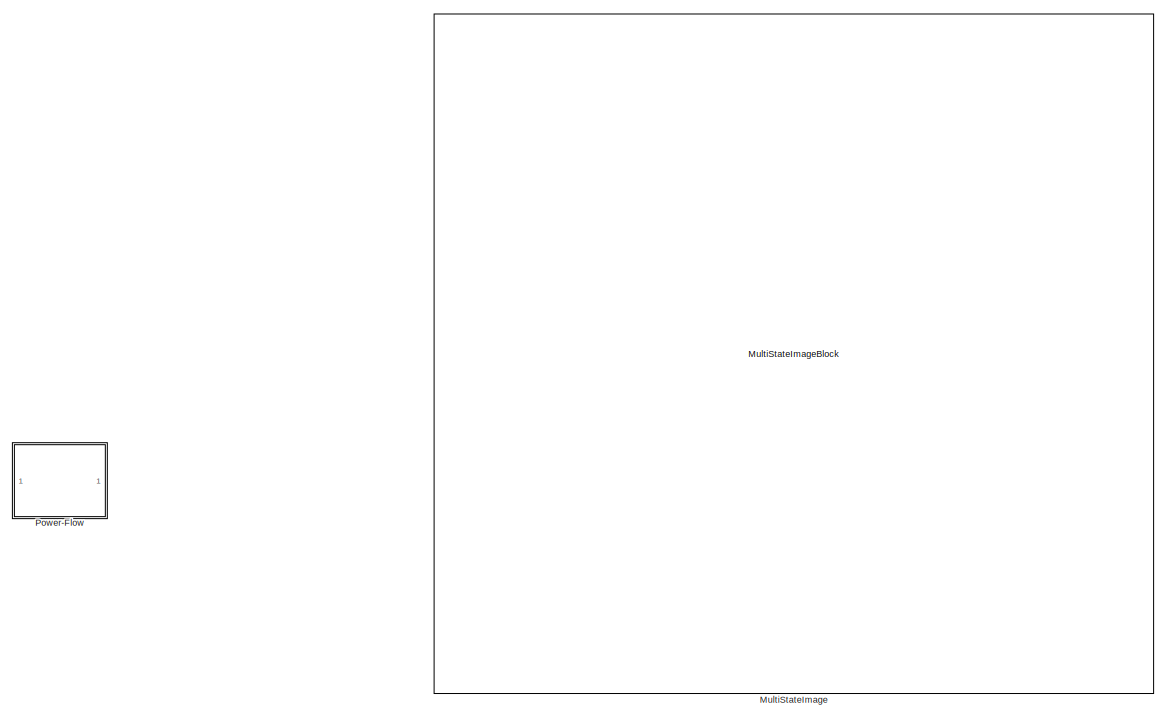
[diagram: root canvas - part 1/21, top center region]
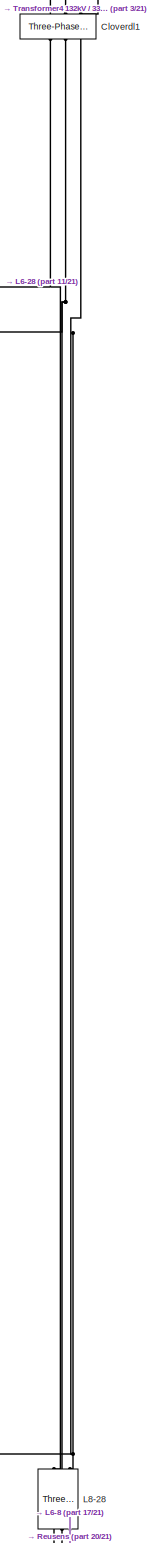
[diagram: root canvas - part 2/21, top right region]
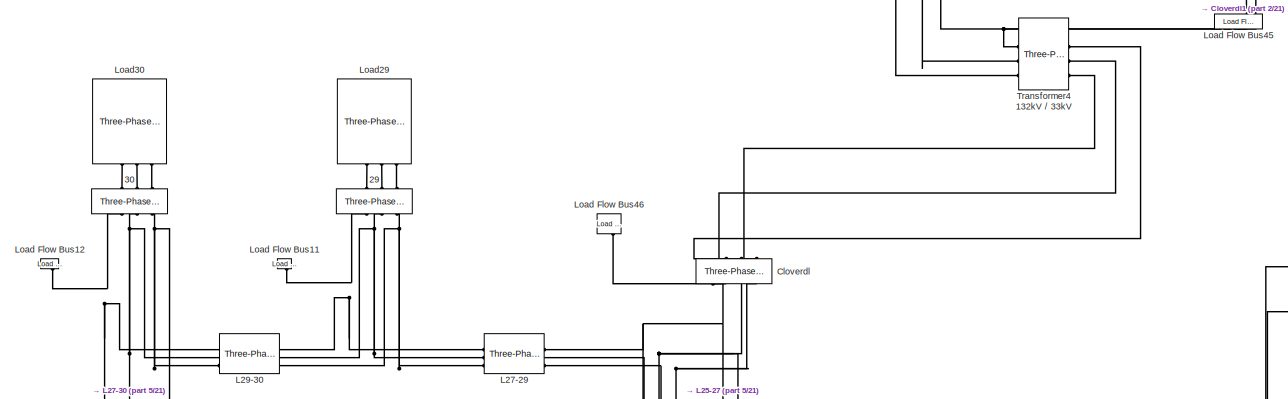
[diagram: root canvas - part 3/21, top right region]
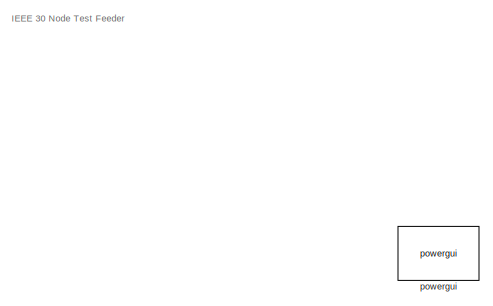
[diagram: root canvas - part 4/21, top center region]
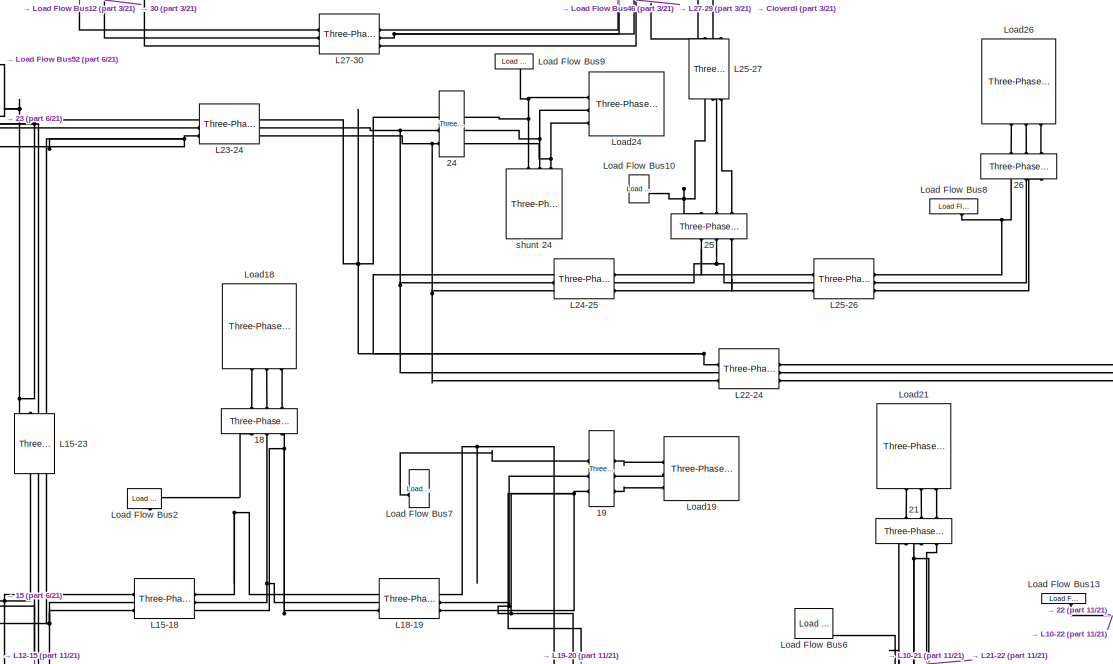
[diagram: root canvas - part 5/21, top right region]
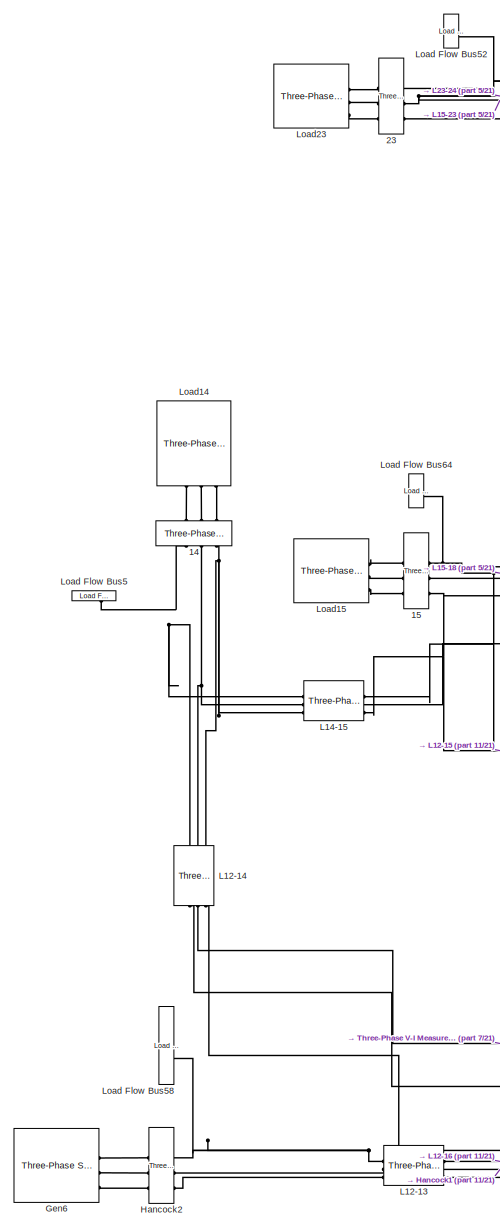
[diagram: root canvas - part 6/21, top right region]
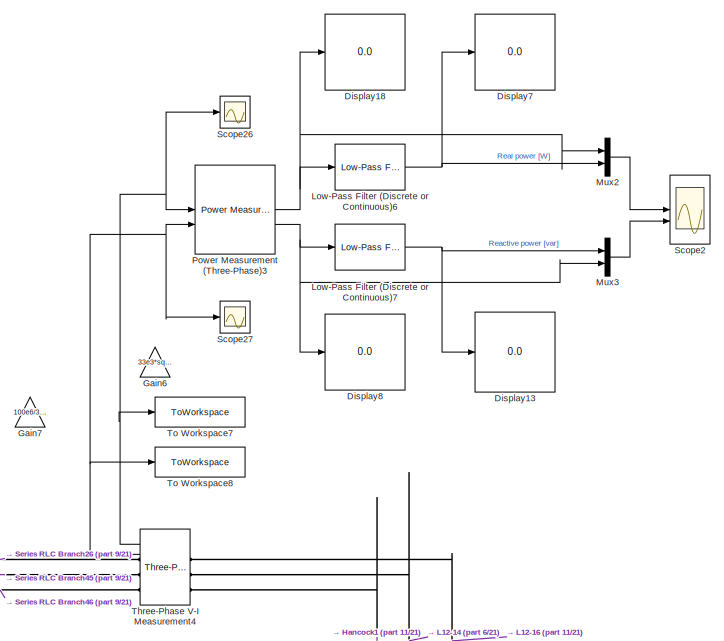
[diagram: root canvas - part 7/21, top center region]
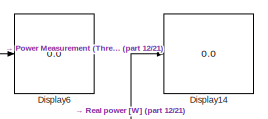
[diagram: root canvas - part 8/21, top left region]
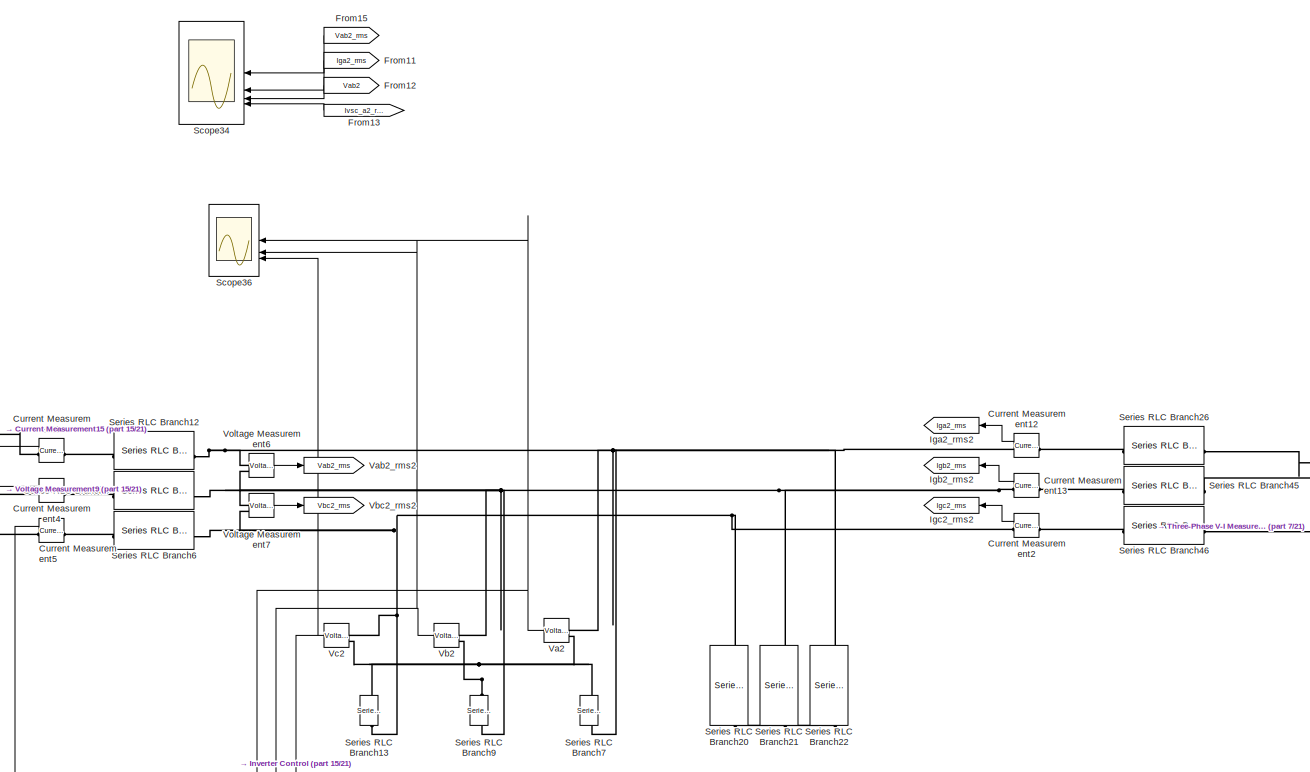
[diagram: root canvas - part 9/21, central region]
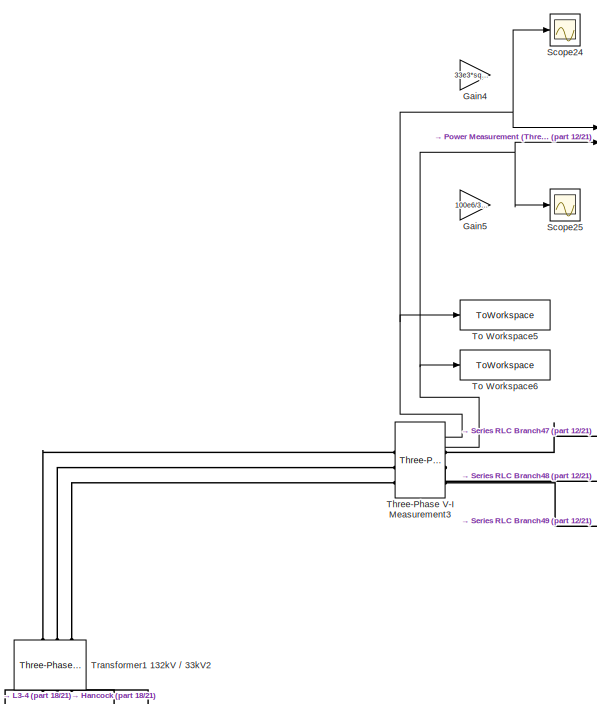
[diagram: root canvas - part 10/21, middle left region]
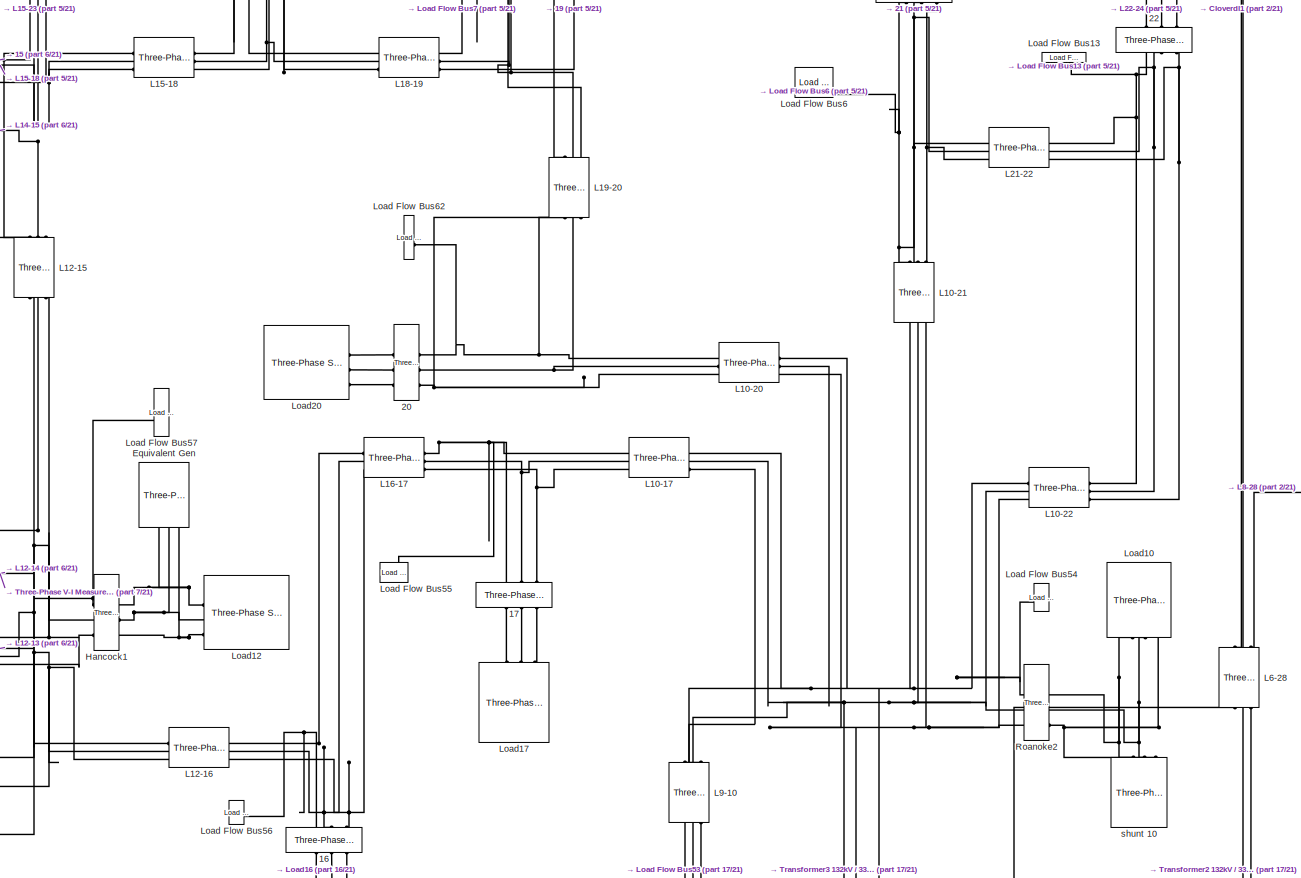
[diagram: root canvas - part 11/21, middle right region]
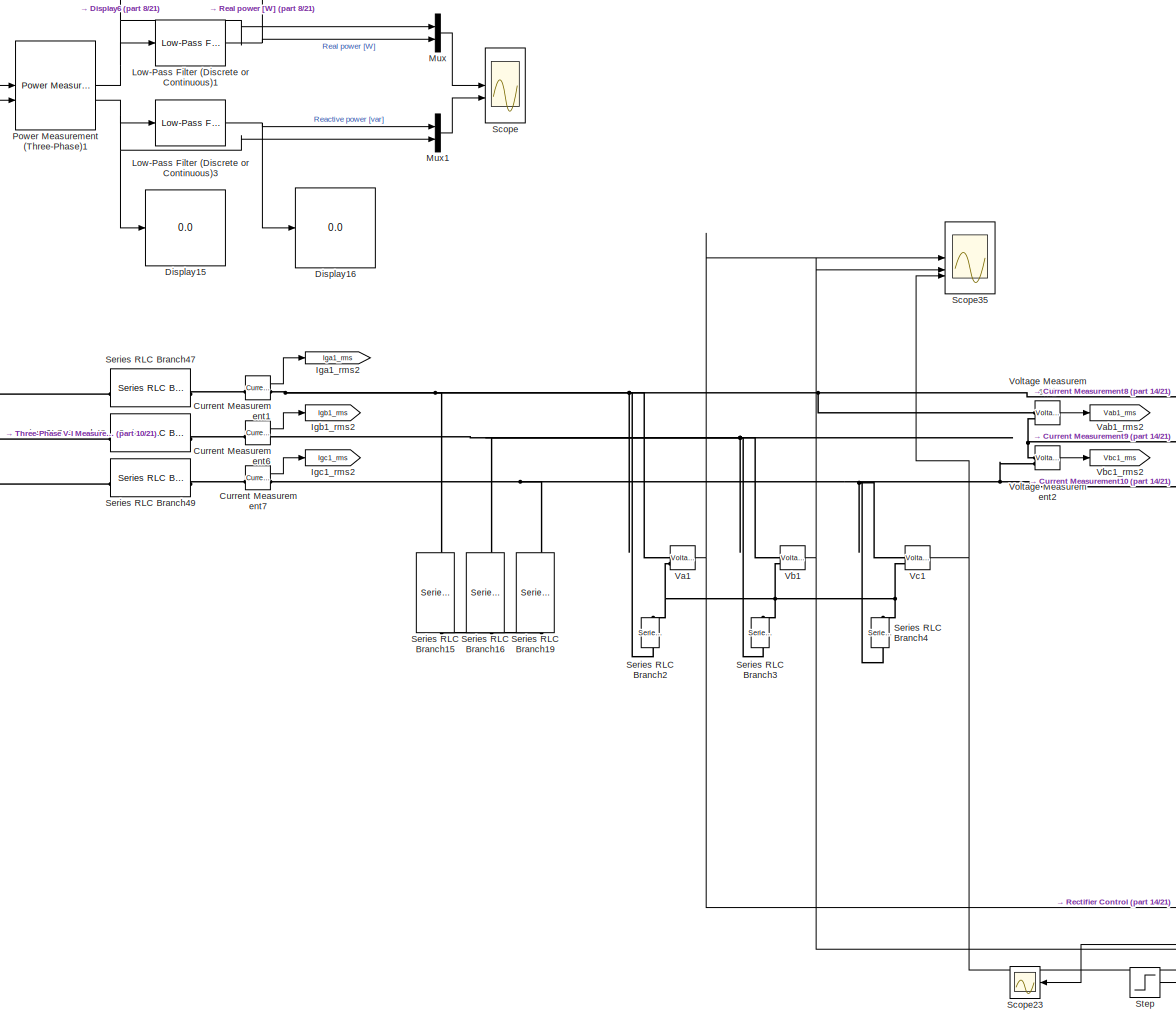
[diagram: root canvas - part 12/21, middle left region]
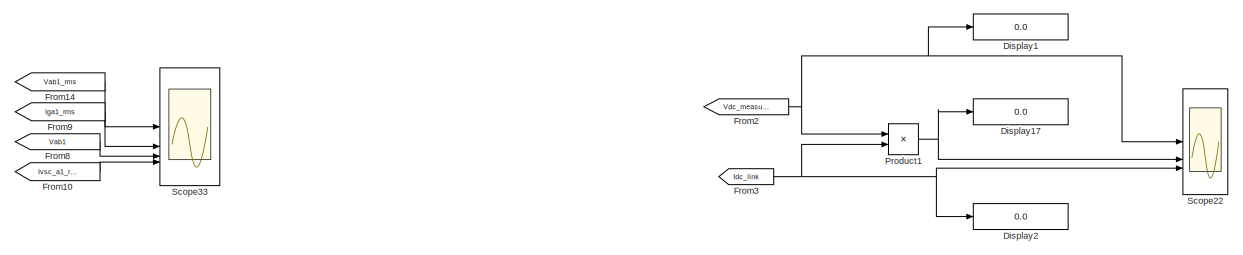
[diagram: root canvas - part 13/21, top left region]
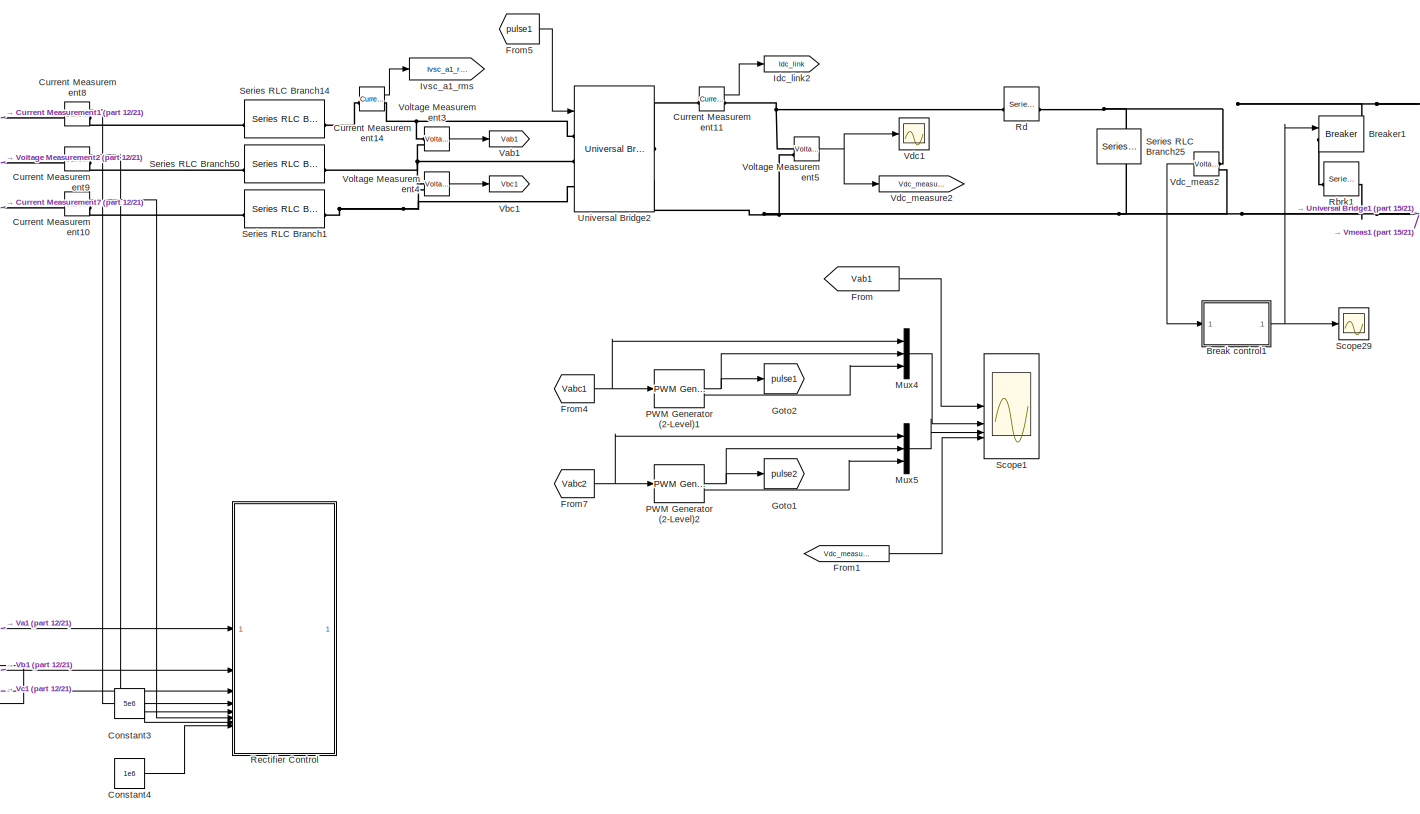
[diagram: root canvas - part 14/21, middle left region]
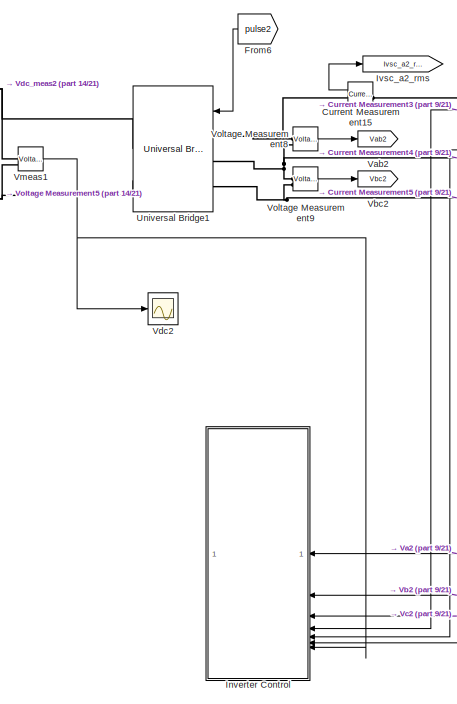
[diagram: root canvas - part 15/21, central region]
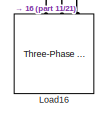
[diagram: root canvas - part 16/21, middle right region]
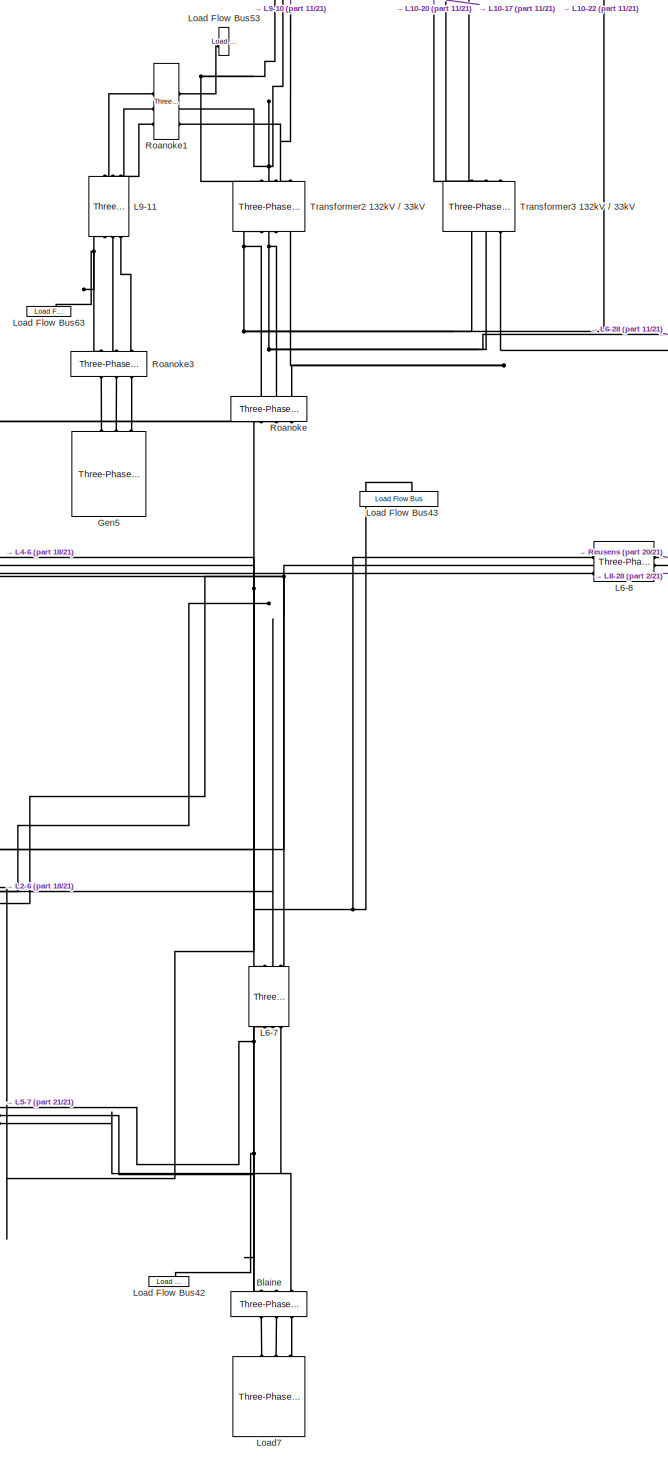
[diagram: root canvas - part 17/21, bottom right region]
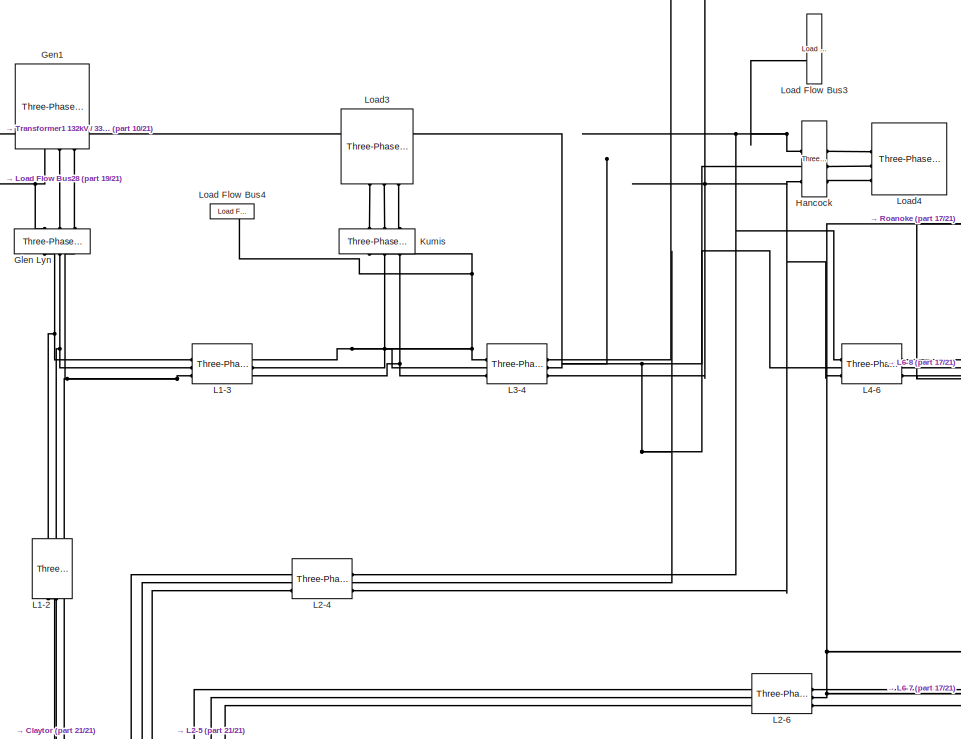
[diagram: root canvas - part 18/21, bottom right region]
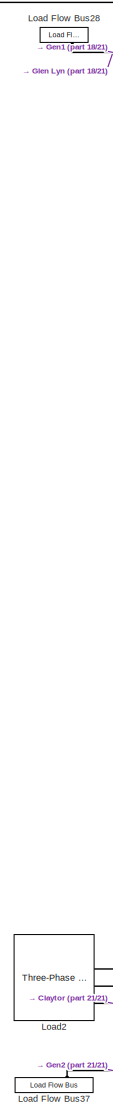
[diagram: root canvas - part 19/21, bottom right region]
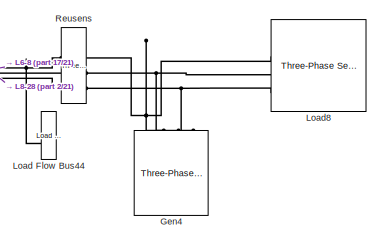
[diagram: root canvas - part 20/21, bottom right region]
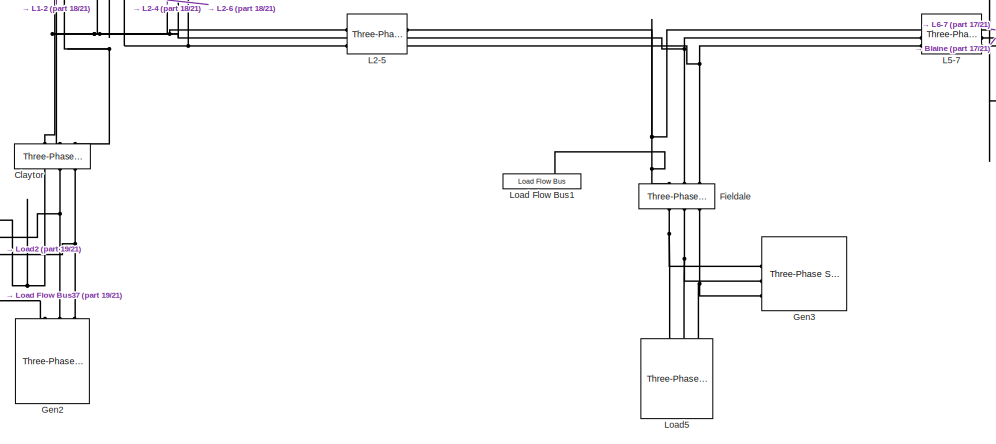
[diagram: root canvas - part 21/21, bottom right region]
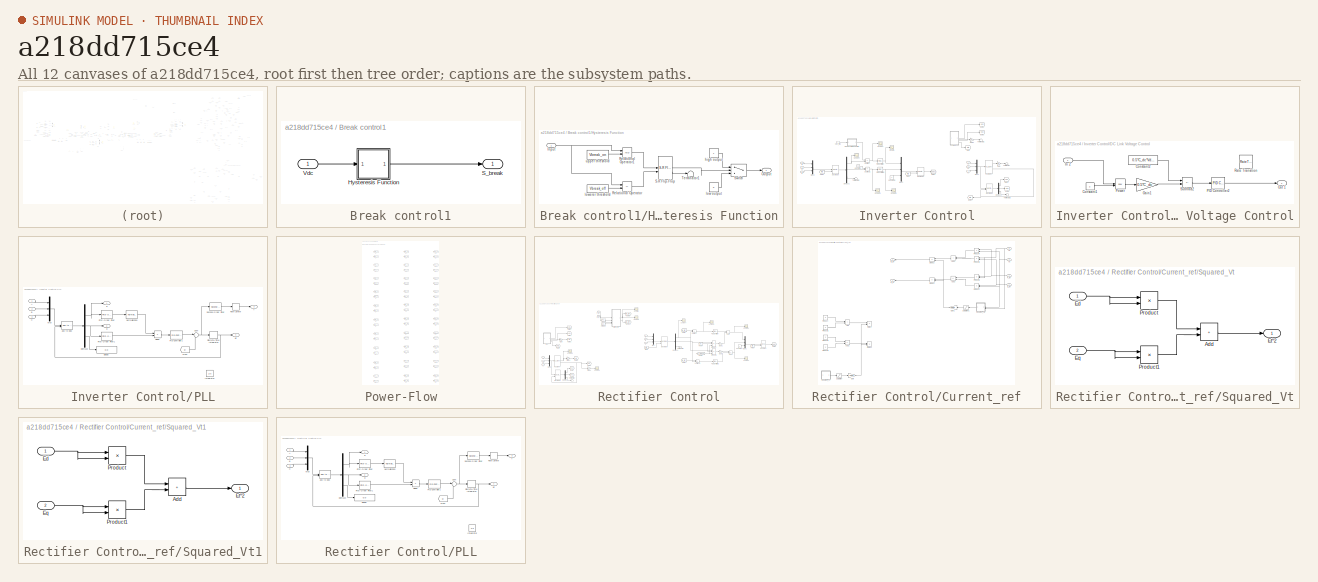
[diagram: thumbnail index - all 12 canvases of the model, root first then tree order]
MODEL slx_a218dd715ce4
KIND model
CONFIG AbsTol = auto
CONFIG EnableMultiTasking = off
CONFIG FixedStep = Tss
CONFIG InitFcn = Tss=5e-5\n\nPnom = 20e6\nVdc = 45e3\n\nVbreak_on = Vdc + Vdc*150/800\nVbreak_off = Vdc \nbreak_status_time = 1.0\n\nRbrk =  Vdc*Vdc/(1.0*Pnom)\n\nVg1rms = 33e3*1.0118\nLg1 = 20e-6\nRg1 = 10e-3\nf1 = 60.0\nm_f=27\nfsw = 10000.0\nIlpp = 0.1*Pnom/Vg1rms\na = 10.0\n\nffast = 1.0*fsw\nTfast = 1.0/ffast\n\nRdc = Vdc*Vdc/Pnom\n\nR1 = Vg1rms*Vg1rms / (500*Pnom) / 3.0\n%L1 = 3.0*1.41*Vg1rms / (2*Vdc) * ((2.0/3.0*Vdc - 1.41*Vg1rms) ...<+763ch>
CONFIG MaxStep = auto
CONFIG MinStep = auto
CONFIG RelTol = 1e-3
CONFIG SampleTimeConstraint = Unconstrained
CONFIG SolverName = FixedStepDiscrete
CONFIG StartTime = 0.0
CONFIG StopTime = 10
BLOCK [Reference] 14  REF=spsThreePhaseVIMeasurementLib/Three-Phase
V-I Measurement
  NameLocation = left
  SourceBlock = spsThreePhaseVIMeasurementLib/Three-Phase\nV-I Measurement
  SourceType = Three-Phase VI Measurement
BLOCK [Reference] 15  REF=spsThreePhaseVIMeasurementLib/Three-Phase
V-I Measurement
  NameLocation = top
  SourceBlock = spsThreePhaseVIMeasurementLib/Three-Phase\nV-I Measurement
  SourceType = Three-Phase VI Measurement
BLOCK [Reference] 16  REF=spsThreePhaseVIMeasurementLib/Three-Phase
V-I Measurement
  NameLocation = left
  SourceBlock = spsThreePhaseVIMeasurementLib/Three-Phase\nV-I Measurement
  SourceType = Three-Phase VI Measurement
BLOCK [Reference] 17  REF=spsThreePhaseVIMeasurementLib/Three-Phase
V-I Measurement
  NameLocation = left
  SourceBlock = spsThreePhaseVIMeasurementLib/Three-Phase\nV-I Measurement
  SourceType = Three-Phase VI Measurement
BLOCK [Reference] 18  REF=spsThreePhaseVIMeasurementLib/Three-Phase
V-I Measurement
  NameLocation = left
  SourceBlock = spsThreePhaseVIMeasurementLib/Three-Phase\nV-I Measurement
  SourceType = Three-Phase VI Measurement
BLOCK [Reference] 19  REF=spsThreePhaseVIMeasurementLib/Three-Phase
V-I Measurement
  NameLocation = top
  SourceBlock = spsThreePhaseVIMeasurementLib/Three-Phase\nV-I Measurement
  SourceType = Three-Phase VI Measurement
BLOCK [Reference] 20  REF=spsThreePhaseVIMeasurementLib/Three-Phase
V-I Measurement
  NameLocation = top
  SourceBlock = spsThreePhaseVIMeasurementLib/Three-Phase\nV-I Measurement
  SourceType = Three-Phase VI Measurement
BLOCK [Reference] 21  REF=spsThreePhaseVIMeasurementLib/Three-Phase
V-I Measurement
  NameLocation = left
  SourceBlock = spsThreePhaseVIMeasurementLib/Three-Phase\nV-I Measurement
  SourceType = Three-Phase VI Measurement
BLOCK [Reference] 22  REF=spsThreePhaseVIMeasurementLib/Three-Phase
V-I Measurement
  NameLocation = left
  SourceBlock = spsThreePhaseVIMeasurementLib/Three-Phase\nV-I Measurement
  SourceType = Three-Phase VI Measurement
BLOCK [Reference] 23  REF=spsThreePhaseVIMeasurementLib/Three-Phase
V-I Measurement
  NameLocation = top
  SourceBlock = spsThreePhaseVIMeasurementLib/Three-Phase\nV-I Measurement
  SourceType = Three-Phase VI Measurement
BLOCK [Reference] 24  REF=spsThreePhaseVIMeasurementLib/Three-Phase
V-I Measurement
  NameLocation = top
  SourceBlock = spsThreePhaseVIMeasurementLib/Three-Phase\nV-I Measurement
  SourceType = Three-Phase VI Measurement
BLOCK [Reference] 25  REF=spsThreePhaseVIMeasurementLib/Three-Phase
V-I Measurement
  NameLocation = left
  SourceBlock = spsThreePhaseVIMeasurementLib/Three-Phase\nV-I Measurement
  SourceType = Three-Phase VI Measurement
BLOCK [Reference] 26  REF=spsThreePhaseVIMeasurementLib/Three-Phase
V-I Measurement
  NameLocation = left
  SourceBlock = spsThreePhaseVIMeasurementLib/Three-Phase\nV-I Measurement
  SourceType = Three-Phase VI Measurement
BLOCK [Reference] 29  REF=spsThreePhaseVIMeasurementLib/Three-Phase
V-I Measurement
  NameLocation = left
  SourceBlock = spsThreePhaseVIMeasurementLib/Three-Phase\nV-I Measurement
  SourceType = Three-Phase VI Measurement
BLOCK [Reference] 30  REF=spsThreePhaseVIMeasurementLib/Three-Phase
V-I Measurement
  NameLocation = left
  SourceBlock = spsThreePhaseVIMeasurementLib/Three-Phase\nV-I Measurement
  SourceType = Three-Phase VI Measurement
BLOCK [Reference] Blaine  REF=spsThreePhaseVIMeasurementLib/Three-Phase
V-I Measurement
  NameLocation = left
  SourceBlock = spsThreePhaseVIMeasurementLib/Three-Phase\nV-I Measurement
  SourceType = Three-Phase VI Measurement
BLOCK [SubSystem] Break control1
  Commented = on
BLOCK [SubSystem] Break control1/Hysteresis Function
BLOCK [Inport] Break control1/Hysteresis Function/Input
BLOCK [Outport] Break control1/Hysteresis Function/Output
BLOCK [RelationalOperator] Break control1/Hysteresis Function/Relational Operator
  InputSameDT = off
  Operator = <=
  OutDataTypeStr = boolean
  RndMeth = Simplest
BLOCK [RelationalOperator] Break control1/Hysteresis Function/Relational Operator1
  InputSameDT = off
  OutDataTypeStr = boolean
  RndMeth = Simplest
BLOCK [Reference] Break control1/Hysteresis Function/S-R Flip-Flop  REF=simulink_extras/Flip Flops/S-R
Flip-Flop
  SourceBlock = simulink_extras/Flip Flops/S-R\nFlip-Flop
  SourceType = SRFlipFlop
BLOCK [Switch] Break control1/Hysteresis Function/Switch
  Criteria = u2 > Threshold
  InputSameDT = off
  SaturateOnIntegerOverflow = off
BLOCK [Terminator] Break control1/Hysteresis Function/Terminator1
BLOCK [Constant] Break control1/Hysteresis Function/high output
  SampleTime = Tfast
BLOCK [Constant] Break control1/Hysteresis Function/low output
  SampleTime = Tfast
  Value = 0
BLOCK [Constant] Break control1/Hysteresis Function/lowerer threshold
  SampleTime = Tfast
  Value = Vbreak_off
BLOCK [Constant] Break control1/Hysteresis Function/upper threshold
  SampleTime = Tfast
  Value = Vbreak_on
BLOCK [Outport] Break control1/S_break
BLOCK [Inport] Break control1/Vdc
BLOCK [Reference] Breaker1  REF=spsBreakerLib/Breaker
  SourceBlock = spsBreakerLib/Breaker
  SourceType = Breaker
BLOCK [Reference] Claytor  REF=spsThreePhaseVIMeasurementLib/Three-Phase
V-I Measurement
  NameLocation = left
  SourceBlock = spsThreePhaseVIMeasurementLib/Three-Phase\nV-I Measurement
  SourceType = Three-Phase VI Measurement
BLOCK [Reference] Cloverdl  REF=spsThreePhaseVIMeasurementLib/Three-Phase
V-I Measurement
  NameLocation = left
  SourceBlock = spsThreePhaseVIMeasurementLib/Three-Phase\nV-I Measurement
  SourceType = Three-Phase VI Measurement
BLOCK [Reference] Cloverdl1  REF=spsThreePhaseVIMeasurementLib/Three-Phase
V-I Measurement
  NameLocation = left
  SourceBlock = spsThreePhaseVIMeasurementLib/Three-Phase\nV-I Measurement
  SourceType = Three-Phase VI Measurement
BLOCK [Constant] Constant3
  Value = 5e6
BLOCK [Constant] Constant4
  Value = 1e6
BLOCK [Reference] Current Measurement1  REF=spsCurrentMeasurementLib/Current Measurement
  SourceBlock = spsCurrentMeasurementLib/Current Measurement
  SourceType = Current Measurement
  UserDataPersistent = on
BLOCK [Reference] Current Measurement10  REF=spsCurrentMeasurementLib/Current Measurement
  SourceBlock = spsCurrentMeasurementLib/Current Measurement
  SourceType = Current Measurement
  UserDataPersistent = on
BLOCK [Reference] Current Measurement11  REF=spsCurrentMeasurementLib/Current Measurement
  SourceBlock = spsCurrentMeasurementLib/Current Measurement
  SourceType = Current Measurement
  UserDataPersistent = on
BLOCK [Reference] Current Measurement12  REF=spsCurrentMeasurementLib/Current Measurement
  SourceBlock = spsCurrentMeasurementLib/Current Measurement
  SourceType = Current Measurement
  UserDataPersistent = on
BLOCK [Reference] Current Measurement13  REF=spsCurrentMeasurementLib/Current Measurement
  SourceBlock = spsCurrentMeasurementLib/Current Measurement
  SourceType = Current Measurement
  UserDataPersistent = on
BLOCK [Reference] Current Measurement14  REF=spsCurrentMeasurementLib/Current Measurement
  SourceBlock = spsCurrentMeasurementLib/Current Measurement
  SourceType = Current Measurement
  UserDataPersistent = on
BLOCK [Reference] Current Measurement15  REF=spsCurrentMeasurementLib/Current Measurement
  SourceBlock = spsCurrentMeasurementLib/Current Measurement
  SourceType = Current Measurement
  UserDataPersistent = on
BLOCK [Reference] Current Measurement2  REF=spsCurrentMeasurementLib/Current Measurement
  SourceBlock = spsCurrentMeasurementLib/Current Measurement
  SourceType = Current Measurement
  UserDataPersistent = on
BLOCK [Reference] Current Measurement3  REF=spsCurrentMeasurementLib/Current Measurement
  SourceBlock = spsCurrentMeasurementLib/Current Measurement
  SourceType = Current Measurement
  UserDataPersistent = on
BLOCK [Reference] Current Measurement4  REF=spsCurrentMeasurementLib/Current Measurement
  SourceBlock = spsCurrentMeasurementLib/Current Measurement
  SourceType = Current Measurement
  UserDataPersistent = on
BLOCK [Reference] Current Measurement5  REF=spsCurrentMeasurementLib/Current Measurement
  SourceBlock = spsCurrentMeasurementLib/Current Measurement
  SourceType = Current Measurement
  UserDataPersistent = on
BLOCK [Reference] Current Measurement6  REF=spsCurrentMeasurementLib/Current Measurement
  SourceBlock = spsCurrentMeasurementLib/Current Measurement
  SourceType = Current Measurement
  UserDataPersistent = on
BLOCK [Reference] Current Measurement7  REF=spsCurrentMeasurementLib/Current Measurement
  SourceBlock = spsCurrentMeasurementLib/Current Measurement
  SourceType = Current Measurement
  UserDataPersistent = on
BLOCK [Reference] Current Measurement8  REF=spsCurrentMeasurementLib/Current Measurement
  SourceBlock = spsCurrentMeasurementLib/Current Measurement
  SourceType = Current Measurement
  UserDataPersistent = on
BLOCK [Reference] Current Measurement9  REF=spsCurrentMeasurementLib/Current Measurement
  SourceBlock = spsCurrentMeasurementLib/Current Measurement
  SourceType = Current Measurement
  UserDataPersistent = on
BLOCK [Display] Display1
  Decimation = 1
BLOCK [Display] Display13
  Decimation = 1
BLOCK [Display] Display14
  Decimation = 1
BLOCK [Display] Display15
  Decimation = 1
BLOCK [Display] Display16
  Decimation = 1
BLOCK [Display] Display17
  Decimation = 1
BLOCK [Display] Display18
  Decimation = 1
BLOCK [Display] Display2
  Decimation = 1
BLOCK [Display] Display6
  Decimation = 1
BLOCK [Display] Display7
  Decimation = 1
BLOCK [Display] Display8
  Decimation = 1
BLOCK [Reference] Equivalent Gen  REF=spsThreePhaseSourceLib/Three-Phase Source
  Commented = on
  NameLocation = right
  SourceBlock = spsThreePhaseSourceLib/Three-Phase Source
  SourceType = Three-Phase Source
BLOCK [Reference] Fieldale  REF=spsThreePhaseVIMeasurementLib/Three-Phase
V-I Measurement
  NameLocation = left
  SourceBlock = spsThreePhaseVIMeasurementLib/Three-Phase\nV-I Measurement
  SourceType = Three-Phase VI Measurement
BLOCK [From] From
  GotoTag = Vab1
BLOCK [From] From1
  GotoTag = Vdc_measure
  TagVisibility = global
BLOCK [From] From10
  GotoTag = Ivsc_a1_rms
BLOCK [From] From11
  GotoTag = Iga2_rms
BLOCK [From] From12
  GotoTag = Vab2
BLOCK [From] From13
  GotoTag = Ivsc_a2_rms
BLOCK [From] From14
  GotoTag = Vab1_rms
BLOCK [From] From15
  GotoTag = Vab2_rms
BLOCK [From] From2
  GotoTag = Vdc_measure
  TagVisibility = global
BLOCK [From] From3
  GotoTag = Idc_link
BLOCK [From] From4
  GotoTag = Vabc1
  TagVisibility = global
BLOCK [From] From5
  GotoTag = pulse1
  TagVisibility = global
BLOCK [From] From6
  GotoTag = pulse2
  TagVisibility = global
BLOCK [From] From7
  GotoTag = Vabc2
  TagVisibility = global
BLOCK [From] From8
  GotoTag = Vab1
BLOCK [From] From9
  GotoTag = Iga1_rms
BLOCK [Gain] Gain4
  Commented = on
  Gain = 33e3*sqrt(2)/sqrt(3)
BLOCK [Gain] Gain5
  Commented = on
  Gain = 100e6/33e3*sqrt(2)/sqrt(3)
BLOCK [Gain] Gain6
  Commented = on
  Gain = 33e3*sqrt(2)/sqrt(3)
  NameLocation = right
BLOCK [Gain] Gain7
  Commented = on
  Gain = 100e6/33e3*sqrt(2)/sqrt(3)
  NameLocation = right
BLOCK [Reference] Gen1  REF=spsThreePhaseSourceLib/Three-Phase Source
  NameLocation = left
  SourceBlock = spsThreePhaseSourceLib/Three-Phase Source
  SourceType = Three-Phase Source
BLOCK [Reference] Gen2  REF=spsThreePhaseSourceLib/Three-Phase Source
  NameLocation = right
  SourceBlock = spsThreePhaseSourceLib/Three-Phase Source
  SourceType = Three-Phase Source
BLOCK [Reference] Gen3  REF=spsThreePhaseSourceLib/Three-Phase Source
  NameLocation = top
  SourceBlock = spsThreePhaseSourceLib/Three-Phase Source
  SourceType = Three-Phase Source
BLOCK [Reference] Gen4  REF=spsThreePhaseSourceLib/Three-Phase Source
  NameLocation = right
  SourceBlock = spsThreePhaseSourceLib/Three-Phase Source
  SourceType = Three-Phase Source
BLOCK [Reference] Gen5  REF=spsThreePhaseSourceLib/Three-Phase Source
  NameLocation = right
  SourceBlock = spsThreePhaseSourceLib/Three-Phase Source
  SourceType = Three-Phase Source
BLOCK [Reference] Gen6  REF=spsThreePhaseSourceLib/Three-Phase Source
  SourceBlock = spsThreePhaseSourceLib/Three-Phase Source
  SourceType = Three-Phase Source
BLOCK [Reference] Glen Lyn  REF=spsThreePhaseVIMeasurementLib/Three-Phase
V-I Measurement
  NameLocation = right
  SourceBlock = spsThreePhaseVIMeasurementLib/Three-Phase\nV-I Measurement
  SourceType = Three-Phase VI Measurement
BLOCK [Goto] Goto1
  GotoTag = pulse2
  TagVisibility = global
BLOCK [Goto] Goto2
  GotoTag = pulse1
  TagVisibility = global
BLOCK [Reference] Hancock  REF=spsThreePhaseVIMeasurementLib/Three-Phase
V-I Measurement
  NameLocation = top
  SourceBlock = spsThreePhaseVIMeasurementLib/Three-Phase\nV-I Measurement
  SourceType = Three-Phase VI Measurement
BLOCK [Reference] Hancock1  REF=spsThreePhaseVIMeasurementLib/Three-Phase
V-I Measurement
  NameLocation = top
  SourceBlock = spsThreePhaseVIMeasurementLib/Three-Phase\nV-I Measurement
  SourceType = Three-Phase VI Measurement
BLOCK [Reference] Hancock2  REF=spsThreePhaseVIMeasurementLib/Three-Phase
V-I Measurement
  NameLocation = top
  SourceBlock = spsThreePhaseVIMeasurementLib/Three-Phase\nV-I Measurement
  SourceType = Three-Phase VI Measurement
BLOCK [Goto] Idc_link2
  GotoTag = Idc_link
BLOCK [Goto] Iga1_rms2
  GotoTag = Iga1_rms
BLOCK [Goto] Iga2_rms2
  GotoTag = Iga2_rms
BLOCK [Goto] Igb1_rms2
  GotoTag = Igb1_rms
BLOCK [Goto] Igb2_rms2
  GotoTag = Igb2_rms
BLOCK [Goto] Igc1_rms2
  GotoTag = Igc1_rms
BLOCK [Goto] Igc2_rms2
  GotoTag = Igc2_rms
BLOCK [SubSystem] Inverter Control
BLOCK [Constant] Inverter Control/Constant
  SampleTime = Tsw2
  Value = 0.0
BLOCK [Constant] Inverter Control/Constant1
  Value = 0
BLOCK [SubSystem] Inverter Control/DC Link Voltage Control
BLOCK [Constant] Inverter Control/DC Link Voltage Control/Constant1
  SampleTime = Tslow
  Value = 2
BLOCK [Constant] Inverter Control/DC Link Voltage Control/Constant2
  SampleTime = Tslow
  Value = 0.5*C_dc*Vdc*Vdc
BLOCK [Gain] Inverter Control/DC Link Voltage Control/Gain1
  Gain = 0.5*C_dc
BLOCK [Inport] Inverter Control/DC Link Voltage Control/In 2
BLOCK [Outport] Inverter Control/DC Link Voltage Control/Out 1
BLOCK [Reference] Inverter Control/DC Link Voltage Control/PID Controller2  REF=slpidlib/PID Controller
  SourceBlock = slpidlib/PID Controller
  SourceType = PID 1dof
BLOCK [Math] Inverter Control/DC Link Voltage Control/Power
  Operator = pow
BLOCK [RateTransition] Inverter Control/DC Link Voltage Control/Rate Transition
  Commented = on
  OutPortSampleTime = Tsw2
BLOCK [Sum] Inverter Control/DC Link Voltage Control/Subtract2
  IconShape = rectangular
  Inputs = +-
BLOCK [Demux] Inverter Control/Demux1
  Outputs = 3
BLOCK [Demux] Inverter Control/Demux2
  Outputs = 3
BLOCK [From] Inverter Control/From
  GotoTag = wt2
BLOCK [From] Inverter Control/From1
  GotoTag = wt2
BLOCK [Gain] Inverter Control/Gain
  Gain = 2*pi
BLOCK [Gain] Inverter Control/Gain2
  Commented = on
  Gain = 2*pi
BLOCK [Goto] Inverter Control/Goto
  Commented = on
  GotoTag = wt2
BLOCK [Goto] Inverter Control/Goto1
  GotoTag = Vabc2
  TagVisibility = global
BLOCK [Goto] Inverter Control/Goto2
  Commented = on
  GotoTag = Vd2
  TagVisibility = global
BLOCK [Goto] Inverter Control/Goto3
  Commented = on
  GotoTag = Vq2
  TagVisibility = global
BLOCK [Goto] Inverter Control/Goto4
  GotoTag = wt2
BLOCK [Goto] Inverter Control/Goto7
  GotoTag = Vd2
BLOCK [Goto] Inverter Control/Goto8
  GotoTag = Vq2
BLOCK [Inport] Inverter Control/Ia
  Port = 4
BLOCK [Inport] Inverter Control/Ib
  Port = 5
BLOCK [Inport] Inverter Control/Ic
  Port = 6
BLOCK [Mux] Inverter Control/Mux1
  DisplayOption = bar
  Inputs = 3
BLOCK [Mux] Inverter Control/Mux2
  DisplayOption = bar
  Inputs = 3
BLOCK [Mux] Inverter Control/Mux3
  DisplayOption = bar
  Inputs = 3
BLOCK [Reference] Inverter Control/PID Controller  REF=slpidlib/PID Controller
  SourceBlock = slpidlib/PID Controller
  SourceType = PID 1dof
BLOCK [Reference] Inverter Control/PID Controller1  REF=slpidlib/PID Controller
  SourceBlock = slpidlib/PID Controller
  SourceType = PID 1dof
BLOCK [SubSystem] Inverter Control/PLL
  Commented = on
BLOCK [Reference] Inverter Control/PLL (3ph)  REF=spsPLL3phLib/PLL
(3ph)
  SourceBlock = spsPLL3phLib/PLL\n(3ph)
  SourceType = PLL (3ph)
BLOCK [Inport] Inverter Control/PLL/A
BLOCK [Inport] Inverter Control/PLL/B
  Port = 2
BLOCK [Inport] Inverter Control/PLL/C
  Port = 3
BLOCK [Demux] Inverter Control/PLL/Demux2
  Outputs = 3
BLOCK [DiscreteIntegrator] Inverter Control/PLL/Discrete-Time Integrator
  ICPrevOutput = DiscIntNeverNeededParam
  ICPrevScaledInput = DiscIntNeverNeededParam
  InitialConditionSetting = Auto
  SampleTime = -1
BLOCK [Display] Inverter Control/PLL/Display
  Decimation = 1
BLOCK [Product] Inverter Control/PLL/Divide
  Inputs = //
BLOCK [Reference] Inverter Control/PLL/First-Order Filter  REF=spsFirstOrderFilterLib/First-Order
Filter
  SourceBlock = spsFirstOrderFilterLib/First-Order\nFilter
  SourceType = First-Order Filter
BLOCK [Reference] Inverter Control/PLL/First-Order Filter1  REF=spsFirstOrderFilterLib/First-Order
Filter
  SourceBlock = spsFirstOrderFilterLib/First-Order\nFilter
  SourceType = First-Order Filter
BLOCK [From] Inverter Control/PLL/From
  GotoTag = w
  TagVisibility = global
BLOCK [Integrator] Inverter Control/PLL/Integrator
  Commented = on
BLOCK [Mux] Inverter Control/PLL/Mux
  DisplayOption = bar
  Inputs = 3
BLOCK [Reference] Inverter Control/PLL/Normalization  REF=dspmathops/Normalization
  SourceBlock = dspmathops/Normalization
  SourceType = Normalization
BLOCK [Reference] Inverter Control/PLL/PID Controller1  REF=pid_lib/PID Controller
  SourceBlock = pid_lib/PID Controller
  SourceType = PID 1dof
BLOCK [RateLimiter] Inverter Control/PLL/Rate Limiter
  SampleTimeMode = inherited
BLOCK [Reference] Inverter Control/PLL/Second-Order Filter  REF=spsSecondOrderFilterLib/Second-Order
Filter
  SourceBlock = spsSecondOrderFilterLib/Second-Order\nFilter
  SourceType = Second-Order Filter
BLOCK [Sum] Inverter Control/PLL/Sum
  Inputs = |++
BLOCK [Reference] Inverter Control/PLL/abc to dq0  REF=spsabctodq0Lib/abc to dq0
  SourceBlock = spsabctodq0Lib/abc to dq0
  SourceType = abc to dq0 Transformation
BLOCK [Outport] Inverter Control/PLL/d
BLOCK [Outport] Inverter Control/PLL/f
  Port = 3
BLOCK [Outport] Inverter Control/PLL/q
  Port = 2
BLOCK [Outport] Inverter Control/PLL/wt
  Port = 4
BLOCK [Scope] Inverter Control/Scope
  Commented = on
  Floating = off
  NumInputPorts = 1
  ScopeSpecificationString = Simulink.scopes.TimeScopeBlockCfg('CurrentConfiguration', extmgr.ConfigurationSet(extmgr.Configuration('Core','General UI',true),extmgr.Configuration('Core','Source UI',true),extmgr.Configuration('Sources','WiredSimulink',true,'DataLoggingVariableName','ScopeData5'),extmgr.Configuration('Visuals','Time Domain',true,'SerializedDisplays',{struct('MinYLimReal','-1.22662','MaxYLimReal','1.2474','YLabe...<+1417ch>
BLOCK [Scope] Inverter Control/Scope1
  Commented = on
  Floating = off
  NumInputPorts = 1
  ScopeSpecificationString = Simulink.scopes.TimeScopeBlockCfg('CurrentConfiguration', extmgr.ConfigurationSet(extmgr.Configuration('Core','General UI',true),extmgr.Configuration('Core','Source UI',true),extmgr.Configuration('Sources','WiredSimulink',true,'DataLoggingVariableName','ScopeData6'),extmgr.Configuration('Visuals','Time Domain',true,'SerializedDisplays',{struct('MinYLimReal','-3171.43806','MaxYLimReal','2503.42147'...<+1389ch>
BLOCK [Scope] Inverter Control/Scope2
  Commented = on
  Floating = off
  NumInputPorts = 1
  ScopeSpecificationString = Simulink.scopes.TimeScopeBlockCfg('CurrentConfiguration', extmgr.ConfigurationSet(extmgr.Configuration('Core','General UI',true),extmgr.Configuration('Core','Source UI',true),extmgr.Configuration('Sources','WiredSimulink',true,'DataLoggingVariableName','ScopeData7'),extmgr.Configuration('Visuals','Time Domain',true,'SerializedDisplays',{struct('MinYLimReal','-1.25','MaxYLimReal','1.25','YLabelReal...<+1356ch>
BLOCK [Scope] Inverter Control/Scope3
  Commented = on
  Floating = off
  NumInputPorts = 1
  ScopeSpecificationString = Simulink.scopes.TimeScopeBlockCfg('CurrentConfiguration', extmgr.ConfigurationSet(extmgr.Configuration('Core','General UI',true),extmgr.Configuration('Core','Source UI',true),extmgr.Configuration('Sources','WiredSimulink',true,'DataLoggingVariableName','ScopeData8'),extmgr.Configuration('Visuals','Time Domain',true,'SerializedDisplays',{struct('MinYLimReal','-1941.83239','MaxYLimReal','2182.45735'...<+1390ch>
BLOCK [Scope] Inverter Control/Scope4
  Commented = on
  Floating = off
  NumInputPorts = 1
  ScopeSpecificationString = Simulink.scopes.TimeScopeBlockCfg('CurrentConfiguration', extmgr.ConfigurationSet(extmgr.Configuration('Core','General UI',true),extmgr.Configuration('Core','Source UI',true),extmgr.Configuration('Sources','WiredSimulink',true,'DataLoggingVariableName','ScopeData9'),extmgr.Configuration('Visuals','Time Domain',true,'SerializedDisplays',{struct('MinYLimReal','-2811.13186','MaxYLimReal','3804.43298'...<+1418ch>
BLOCK [Sum] Inverter Control/Subtract
  IconShape = rectangular
  Inputs = +-
BLOCK [Sum] Inverter Control/Subtract1
  IconShape = rectangular
  Inputs = +-
BLOCK [Terminator] Inverter Control/Terminator
BLOCK [Terminator] Inverter Control/Terminator1
  Commented = on
BLOCK [Terminator] Inverter Control/Terminator2
BLOCK [Terminator] Inverter Control/Terminator3
BLOCK [Inport] Inverter Control/Va
BLOCK [Inport] Inverter Control/Vb
  Port = 2
BLOCK [Inport] Inverter Control/Vc
  Port = 3
BLOCK [Inport] Inverter Control/Vdc_link
  Port = 7
BLOCK [Reference] Inverter Control/abc to dq0  REF=spsabctodq0Lib/abc to dq0
  SourceBlock = spsabctodq0Lib/abc to dq0
  SourceType = abc to dq0 Transformation
BLOCK [Reference] Inverter Control/abc to dq1  REF=spsabctodq0Lib/abc to dq0
  SourceBlock = spsabctodq0Lib/abc to dq0
  SourceType = abc to dq0 Transformation
BLOCK [Reference] Inverter Control/dq0 to abc  REF=spsdq0toabcLib/dq0 to abc
  SourceBlock = spsdq0toabcLib/dq0 to abc
  SourceType = dq0 to abc Transformation
BLOCK [Goto] Ivsc_a1_rms
  GotoTag = Ivsc_a1_rms
BLOCK [Goto] Ivsc_a2_rms
  GotoTag = Ivsc_a2_rms
  NameLocation = top
BLOCK [Reference] Kumis  REF=spsThreePhaseVIMeasurementLib/Three-Phase
V-I Measurement
  NameLocation = left
  SourceBlock = spsThreePhaseVIMeasurementLib/Three-Phase\nV-I Measurement
  SourceType = Three-Phase VI Measurement
BLOCK [Reference] L1-2  REF=spsThreePhasePISectionLineLib/Three-Phase
PI Section Line
  AttributesFormatString = \n
  NameLocation = right
  SourceBlock = spsThreePhasePISectionLineLib/Three-Phase\nPI Section Line
  SourceType = Three-Phase PI Section Line
BLOCK [Reference] L1-3  REF=spsThreePhasePISectionLineLib/Three-Phase
PI Section Line
  AttributesFormatString = \n
  SourceBlock = spsThreePhasePISectionLineLib/Three-Phase\nPI Section Line
  SourceType = Three-Phase PI Section Line
BLOCK [Reference] L10-17  REF=spsThreePhasePISectionLineLib/Three-Phase
PI Section Line
  AttributesFormatString = \n
  SourceBlock = spsThreePhasePISectionLineLib/Three-Phase\nPI Section Line
  SourceType = Three-Phase PI Section Line
BLOCK [Reference] L10-20  REF=spsThreePhasePISectionLineLib/Three-Phase
PI Section Line
  AttributesFormatString = \n
  SourceBlock = spsThreePhasePISectionLineLib/Three-Phase\nPI Section Line
  SourceType = Three-Phase PI Section Line
BLOCK [Reference] L10-21  REF=spsThreePhasePISectionLineLib/Three-Phase
PI Section Line
  AttributesFormatString = \n
  NameLocation = right
  SourceBlock = spsThreePhasePISectionLineLib/Three-Phase\nPI Section Line
  SourceType = Three-Phase PI Section Line
BLOCK [Reference] L10-22  REF=spsThreePhasePISectionLineLib/Three-Phase
PI Section Line
  AttributesFormatString = \n
  SourceBlock = spsThreePhasePISectionLineLib/Three-Phase\nPI Section Line
  SourceType = Three-Phase PI Section Line
BLOCK [Reference] L12-13  REF=spsThreePhasePISectionLineLib/Three-Phase
PI Section Line
  AttributesFormatString = \n
  SourceBlock = spsThreePhasePISectionLineLib/Three-Phase\nPI Section Line
  SourceType = Three-Phase PI Section Line
BLOCK [Reference] L12-14  REF=spsThreePhasePISectionLineLib/Three-Phase
PI Section Line
  AttributesFormatString = \n
  NameLocation = right
  SourceBlock = spsThreePhasePISectionLineLib/Three-Phase\nPI Section Line
  SourceType = Three-Phase PI Section Line
BLOCK [Reference] L12-15  REF=spsThreePhasePISectionLineLib/Three-Phase
PI Section Line
  AttributesFormatString = \n
  NameLocation = right
  SourceBlock = spsThreePhasePISectionLineLib/Three-Phase\nPI Section Line
  SourceType = Three-Phase PI Section Line
BLOCK [Reference] L12-16  REF=spsThreePhasePISectionLineLib/Three-Phase
PI Section Line
  AttributesFormatString = \n
  SourceBlock = spsThreePhasePISectionLineLib/Three-Phase\nPI Section Line
  SourceType = Three-Phase PI Section Line
BLOCK [Reference] L14-15  REF=spsThreePhasePISectionLineLib/Three-Phase
PI Section Line
  AttributesFormatString = \n
  SourceBlock = spsThreePhasePISectionLineLib/Three-Phase\nPI Section Line
  SourceType = Three-Phase PI Section Line
BLOCK [Reference] L15-18  REF=spsThreePhasePISectionLineLib/Three-Phase
PI Section Line
  AttributesFormatString = \n
  SourceBlock = spsThreePhasePISectionLineLib/Three-Phase\nPI Section Line
  SourceType = Three-Phase PI Section Line
BLOCK [Reference] L15-23  REF=spsThreePhasePISectionLineLib/Three-Phase
PI Section Line
  AttributesFormatString = \n
  NameLocation = right
  SourceBlock = spsThreePhasePISectionLineLib/Three-Phase\nPI Section Line
  SourceType = Three-Phase PI Section Line
BLOCK [Reference] L16-17  REF=spsThreePhasePISectionLineLib/Three-Phase
PI Section Line
  AttributesFormatString = \n
  SourceBlock = spsThreePhasePISectionLineLib/Three-Phase\nPI Section Line
  SourceType = Three-Phase PI Section Line
BLOCK [Reference] L18-19  REF=spsThreePhasePISectionLineLib/Three-Phase
PI Section Line
  AttributesFormatString = \n
  SourceBlock = spsThreePhasePISectionLineLib/Three-Phase\nPI Section Line
  SourceType = Three-Phase PI Section Line
BLOCK [Reference] L19-20  REF=spsThreePhasePISectionLineLib/Three-Phase
PI Section Line
  AttributesFormatString = \n
  NameLocation = right
  SourceBlock = spsThreePhasePISectionLineLib/Three-Phase\nPI Section Line
  SourceType = Three-Phase PI Section Line
BLOCK [Reference] L2-4  REF=spsThreePhasePISectionLineLib/Three-Phase
PI Section Line
  AttributesFormatString = \n
  SourceBlock = spsThreePhasePISectionLineLib/Three-Phase\nPI Section Line
  SourceType = Three-Phase PI Section Line
BLOCK [Reference] L2-5  REF=spsThreePhasePISectionLineLib/Three-Phase
PI Section Line
  AttributesFormatString = \n
  SourceBlock = spsThreePhasePISectionLineLib/Three-Phase\nPI Section Line
  SourceType = Three-Phase PI Section Line
BLOCK [Reference] L2-6  REF=spsThreePhasePISectionLineLib/Three-Phase
PI Section Line
  AttributesFormatString = \n
  SourceBlock = spsThreePhasePISectionLineLib/Three-Phase\nPI Section Line
  SourceType = Three-Phase PI Section Line
BLOCK [Reference] L21-22  REF=spsThreePhasePISectionLineLib/Three-Phase
PI Section Line
  AttributesFormatString = \n
  SourceBlock = spsThreePhasePISectionLineLib/Three-Phase\nPI Section Line
  SourceType = Three-Phase PI Section Line
BLOCK [Reference] L22-24  REF=spsThreePhasePISectionLineLib/Three-Phase
PI Section Line
  AttributesFormatString = \n
  SourceBlock = spsThreePhasePISectionLineLib/Three-Phase\nPI Section Line
  SourceType = Three-Phase PI Section Line
BLOCK [Reference] L23-24  REF=spsThreePhasePISectionLineLib/Three-Phase
PI Section Line
  AttributesFormatString = \n
  SourceBlock = spsThreePhasePISectionLineLib/Three-Phase\nPI Section Line
  SourceType = Three-Phase PI Section Line
BLOCK [Reference] L24-25  REF=spsThreePhasePISectionLineLib/Three-Phase
PI Section Line
  AttributesFormatString = \n
  SourceBlock = spsThreePhasePISectionLineLib/Three-Phase\nPI Section Line
  SourceType = Three-Phase PI Section Line
BLOCK [Reference] L25-26  REF=spsThreePhasePISectionLineLib/Three-Phase
PI Section Line
  AttributesFormatString = \n
  SourceBlock = spsThreePhasePISectionLineLib/Three-Phase\nPI Section Line
  SourceType = Three-Phase PI Section Line
BLOCK [Reference] L25-27  REF=spsThreePhasePISectionLineLib/Three-Phase
PI Section Line
  AttributesFormatString = \n
  NameLocation = right
  SourceBlock = spsThreePhasePISectionLineLib/Three-Phase\nPI Section Line
  SourceType = Three-Phase PI Section Line
BLOCK [Reference] L27-29  REF=spsThreePhasePISectionLineLib/Three-Phase
PI Section Line
  AttributesFormatString = \n
  SourceBlock = spsThreePhasePISectionLineLib/Three-Phase\nPI Section Line
  SourceType = Three-Phase PI Section Line
BLOCK [Reference] L27-30  REF=spsThreePhasePISectionLineLib/Three-Phase
PI Section Line
  AttributesFormatString = \n
  SourceBlock = spsThreePhasePISectionLineLib/Three-Phase\nPI Section Line
  SourceType = Three-Phase PI Section Line
BLOCK [Reference] L29-30  REF=spsThreePhasePISectionLineLib/Three-Phase
PI Section Line
  AttributesFormatString = \n
  SourceBlock = spsThreePhasePISectionLineLib/Three-Phase\nPI Section Line
  SourceType = Three-Phase PI Section Line
BLOCK [Reference] L3-4  REF=spsThreePhasePISectionLineLib/Three-Phase
PI Section Line
  AttributesFormatString = \n
  SourceBlock = spsThreePhasePISectionLineLib/Three-Phase\nPI Section Line
  SourceType = Three-Phase PI Section Line
BLOCK [Reference] L4-6  REF=spsThreePhasePISectionLineLib/Three-Phase
PI Section Line
  AttributesFormatString = \n
  SourceBlock = spsThreePhasePISectionLineLib/Three-Phase\nPI Section Line
  SourceType = Three-Phase PI Section Line
BLOCK [Reference] L5-7  REF=spsThreePhasePISectionLineLib/Three-Phase
PI Section Line
  AttributesFormatString = \n
  SourceBlock = spsThreePhasePISectionLineLib/Three-Phase\nPI Section Line
  SourceType = Three-Phase PI Section Line
BLOCK [Reference] L6-28  REF=spsThreePhasePISectionLineLib/Three-Phase
PI Section Line
  AttributesFormatString = \n
  NameLocation = right
  SourceBlock = spsThreePhasePISectionLineLib/Three-Phase\nPI Section Line
  SourceType = Three-Phase PI Section Line
BLOCK [Reference] L6-7  REF=spsThreePhasePISectionLineLib/Three-Phase
PI Section Line
  AttributesFormatString = \n
  NameLocation = right
  SourceBlock = spsThreePhasePISectionLineLib/Three-Phase\nPI Section Line
  SourceType = Three-Phase PI Section Line
BLOCK [Reference] L6-8  REF=spsThreePhasePISectionLineLib/Three-Phase
PI Section Line
  AttributesFormatString = \n
  SourceBlock = spsThreePhasePISectionLineLib/Three-Phase\nPI Section Line
  SourceType = Three-Phase PI Section Line
BLOCK [Reference] L8-28  REF=spsThreePhasePISectionLineLib/Three-Phase
PI Section Line
  AttributesFormatString = \n
  NameLocation = right
  SourceBlock = spsThreePhasePISectionLineLib/Three-Phase\nPI Section Line
  SourceType = Three-Phase PI Section Line
BLOCK [Reference] L9-10  REF=spsThreePhasePISectionLineLib/Three-Phase
PI Section Line
  AttributesFormatString = \n
  NameLocation = right
  SourceBlock = spsThreePhasePISectionLineLib/Three-Phase\nPI Section Line
  SourceType = Three-Phase PI Section Line
BLOCK [Reference] L9-11  REF=spsThreePhasePISectionLineLib/Three-Phase
PI Section Line
  AttributesFormatString = \n
  NameLocation = right
  SourceBlock = spsThreePhasePISectionLineLib/Three-Phase\nPI Section Line
  SourceType = Three-Phase PI Section Line
BLOCK [Reference] Load Flow Bus1  REF=spsLoadFlowBusLib/Load Flow Bus
  AttributesFormatString = %<ID>
  NameLocation = left
  SourceBlock = spsLoadFlowBusLib/Load Flow Bus
  SourceType = Load Flow Bus
BLOCK [Reference] Load Flow Bus10  REF=spsLoadFlowBusLib/Load Flow Bus
  AttributesFormatString = %<ID>
  NameLocation = top
  SourceBlock = spsLoadFlowBusLib/Load Flow Bus
  SourceType = Load Flow Bus
BLOCK [Reference] Load Flow Bus11  REF=spsLoadFlowBusLib/Load Flow Bus
  AttributesFormatString = %<ID>
  NameLocation = right
  SourceBlock = spsLoadFlowBusLib/Load Flow Bus
  SourceType = Load Flow Bus
BLOCK [Reference] Load Flow Bus12  REF=spsLoadFlowBusLib/Load Flow Bus
  AttributesFormatString = %<ID>
  NameLocation = right
  SourceBlock = spsLoadFlowBusLib/Load Flow Bus
  SourceType = Load Flow Bus
BLOCK [Reference] Load Flow Bus13  REF=spsLoadFlowBusLib/Load Flow Bus
  AttributesFormatString = %<ID>
  NameLocation = right
  SourceBlock = spsLoadFlowBusLib/Load Flow Bus
  SourceType = Load Flow Bus
BLOCK [Reference] Load Flow Bus2  REF=spsLoadFlowBusLib/Load Flow Bus
  AttributesFormatString = %<ID>
  NameLocation = right
  SourceBlock = spsLoadFlowBusLib/Load Flow Bus
  SourceType = Load Flow Bus
BLOCK [Reference] Load Flow Bus28  REF=spsLoadFlowBusLib/Load Flow Bus
  AttributesFormatString = %<ID>
  NameLocation = right
  SourceBlock = spsLoadFlowBusLib/Load Flow Bus
  SourceType = Load Flow Bus
BLOCK [Reference] Load Flow Bus3  REF=spsLoadFlowBusLib/Load Flow Bus
  AttributesFormatString = %<ID>
  SourceBlock = spsLoadFlowBusLib/Load Flow Bus
  SourceType = Load Flow Bus
BLOCK [Reference] Load Flow Bus37  REF=spsLoadFlowBusLib/Load Flow Bus
  AttributesFormatString = %<ID>
  NameLocation = left
  SourceBlock = spsLoadFlowBusLib/Load Flow Bus
  SourceType = Load Flow Bus
BLOCK [Reference] Load Flow Bus4  REF=spsLoadFlowBusLib/Load Flow Bus
  AttributesFormatString = %<ID>
  NameLocation = right
  SourceBlock = spsLoadFlowBusLib/Load Flow Bus
  SourceType = Load Flow Bus
BLOCK [Reference] Load Flow Bus42  REF=spsLoadFlowBusLib/Load Flow Bus
  AttributesFormatString = %<ID>
  NameLocation = left
  SourceBlock = spsLoadFlowBusLib/Load Flow Bus
  SourceType = Load Flow Bus
BLOCK [Reference] Load Flow Bus43  REF=spsLoadFlowBusLib/Load Flow Bus
  AttributesFormatString = %<ID>
  NameLocation = left
  SourceBlock = spsLoadFlowBusLib/Load Flow Bus
  SourceType = Load Flow Bus
BLOCK [Reference] Load Flow Bus44  REF=spsLoadFlowBusLib/Load Flow Bus
  AttributesFormatString = %<ID>
  SourceBlock = spsLoadFlowBusLib/Load Flow Bus
  SourceType = Load Flow Bus
BLOCK [Reference] Load Flow Bus45  REF=spsLoadFlowBusLib/Load Flow Bus
  AttributesFormatString = %<ID>
  NameLocation = left
  SourceBlock = spsLoadFlowBusLib/Load Flow Bus
  SourceType = Load Flow Bus
BLOCK [Reference] Load Flow Bus46  REF=spsLoadFlowBusLib/Load Flow Bus
  AttributesFormatString = %<ID>
  NameLocation = right
  SourceBlock = spsLoadFlowBusLib/Load Flow Bus
  SourceType = Load Flow Bus
BLOCK [Reference] Load Flow Bus5  REF=spsLoadFlowBusLib/Load Flow Bus
  AttributesFormatString = %<ID>
  NameLocation = right
  SourceBlock = spsLoadFlowBusLib/Load Flow Bus
  SourceType = Load Flow Bus
BLOCK [Reference] Load Flow Bus52  REF=spsLoadFlowBusLib/Load Flow Bus
  AttributesFormatString = %<ID>
  NameLocation = top
  SourceBlock = spsLoadFlowBusLib/Load Flow Bus
  SourceType = Load Flow Bus
BLOCK [Reference] Load Flow Bus53  REF=spsLoadFlowBusLib/Load Flow Bus
  AttributesFormatString = %<ID>
  SourceBlock = spsLoadFlowBusLib/Load Flow Bus
  SourceType = Load Flow Bus
BLOCK [Reference] Load Flow Bus54  REF=spsLoadFlowBusLib/Load Flow Bus
  AttributesFormatString = %<ID>
  NameLocation = top
  SourceBlock = spsLoadFlowBusLib/Load Flow Bus
  SourceType = Load Flow Bus
BLOCK [Reference] Load Flow Bus55  REF=spsLoadFlowBusLib/Load Flow Bus
  AttributesFormatString = %<ID>
  NameLocation = left
  SourceBlock = spsLoadFlowBusLib/Load Flow Bus
  SourceType = Load Flow Bus
BLOCK [Reference] Load Flow Bus56  REF=spsLoadFlowBusLib/Load Flow Bus
  AttributesFormatString = %<ID>
  NameLocation = top
  SourceBlock = spsLoadFlowBusLib/Load Flow Bus
  SourceType = Load Flow Bus
BLOCK [Reference] Load Flow Bus57  REF=spsLoadFlowBusLib/Load Flow Bus
  AttributesFormatString = %<ID>
  NameLocation = top
  SourceBlock = spsLoadFlowBusLib/Load Flow Bus
  SourceType = Load Flow Bus
BLOCK [Reference] Load Flow Bus58  REF=spsLoadFlowBusLib/Load Flow Bus
  AttributesFormatString = %<ID>
  NameLocation = top
  SourceBlock = spsLoadFlowBusLib/Load Flow Bus
  SourceType = Load Flow Bus
BLOCK [Reference] Load Flow Bus6  REF=spsLoadFlowBusLib/Load Flow Bus
  AttributesFormatString = %<ID>
  NameLocation = right
  SourceBlock = spsLoadFlowBusLib/Load Flow Bus
  SourceType = Load Flow Bus
BLOCK [Reference] Load Flow Bus62  REF=spsLoadFlowBusLib/Load Flow Bus
  AttributesFormatString = %<ID>
  NameLocation = top
  SourceBlock = spsLoadFlowBusLib/Load Flow Bus
  SourceType = Load Flow Bus
BLOCK [Reference] Load Flow Bus63  REF=spsLoadFlowBusLib/Load Flow Bus
  AttributesFormatString = %<ID>
  NameLocation = left
  SourceBlock = spsLoadFlowBusLib/Load Flow Bus
  SourceType = Load Flow Bus
BLOCK [Reference] Load Flow Bus64  REF=spsLoadFlowBusLib/Load Flow Bus
  AttributesFormatString = %<ID>
  NameLocation = top
  SourceBlock = spsLoadFlowBusLib/Load Flow Bus
  SourceType = Load Flow Bus
BLOCK [Reference] Load Flow Bus7  REF=spsLoadFlowBusLib/Load Flow Bus
  AttributesFormatString = %<ID>
  NameLocation = top
  SourceBlock = spsLoadFlowBusLib/Load Flow Bus
  SourceType = Load Flow Bus
BLOCK [Reference] Load Flow Bus8  REF=spsLoadFlowBusLib/Load Flow Bus
  AttributesFormatString = %<ID>
  NameLocation = right
  SourceBlock = spsLoadFlowBusLib/Load Flow Bus
  SourceType = Load Flow Bus
BLOCK [Reference] Load Flow Bus9  REF=spsLoadFlowBusLib/Load Flow Bus
  AttributesFormatString = %<ID>
  NameLocation = left
  SourceBlock = spsLoadFlowBusLib/Load Flow Bus
  SourceType = Load Flow Bus
BLOCK [Reference] Load10  REF=spsThreePhaseSeriesRLCLoadLib/Three-Phase
Series RLC Load
  AttributesFormatString = \n
  NameLocation = left
  SourceBlock = spsThreePhaseSeriesRLCLoadLib/Three-Phase\nSeries RLC Load
  SourceType = Three-Phase Series RLC Load
BLOCK [Reference] Load12  REF=spsThreePhaseSeriesRLCLoadLib/Three-Phase
Series RLC Load
  AttributesFormatString = \n
  NameLocation = top
  SourceBlock = spsThreePhaseSeriesRLCLoadLib/Three-Phase\nSeries RLC Load
  SourceType = Three-Phase Series RLC Load
BLOCK [Reference] Load14  REF=spsThreePhaseSeriesRLCLoadLib/Three-Phase
Series RLC Load
  AttributesFormatString = \n
  NameLocation = left
  SourceBlock = spsThreePhaseSeriesRLCLoadLib/Three-Phase\nSeries RLC Load
  SourceType = Three-Phase Series RLC Load
BLOCK [Reference] Load15  REF=spsThreePhaseSeriesRLCLoadLib/Three-Phase
Series RLC Load
  AttributesFormatString = \n
  SourceBlock = spsThreePhaseSeriesRLCLoadLib/Three-Phase\nSeries RLC Load
  SourceType = Three-Phase Series RLC Load
BLOCK [Reference] Load16  REF=spsThreePhaseSeriesRLCLoadLib/Three-Phase
Series RLC Load
  AttributesFormatString = \n
  NameLocation = right
  SourceBlock = spsThreePhaseSeriesRLCLoadLib/Three-Phase\nSeries RLC Load
  SourceType = Three-Phase Series RLC Load
BLOCK [Reference] Load17  REF=spsThreePhaseSeriesRLCLoadLib/Three-Phase
Series RLC Load
  AttributesFormatString = \n
  NameLocation = right
  SourceBlock = spsThreePhaseSeriesRLCLoadLib/Three-Phase\nSeries RLC Load
  SourceType = Three-Phase Series RLC Load
BLOCK [Reference] Load18  REF=spsThreePhaseSeriesRLCLoadLib/Three-Phase
Series RLC Load
  AttributesFormatString = \n
  NameLocation = left
  SourceBlock = spsThreePhaseSeriesRLCLoadLib/Three-Phase\nSeries RLC Load
  SourceType = Three-Phase Series RLC Load
BLOCK [Reference] Load19  REF=spsThreePhaseSeriesRLCLoadLib/Three-Phase
Series RLC Load
  AttributesFormatString = \n
  NameLocation = top
  SourceBlock = spsThreePhaseSeriesRLCLoadLib/Three-Phase\nSeries RLC Load
  SourceType = Three-Phase Series RLC Load
BLOCK [Reference] Load2  REF=spsThreePhaseSeriesRLCLoadLib/Three-Phase
Series RLC Load
  AttributesFormatString = \n
  SourceBlock = spsThreePhaseSeriesRLCLoadLib/Three-Phase\nSeries RLC Load
  SourceType = Three-Phase Series RLC Load
BLOCK [Reference] Load20  REF=spsThreePhaseSeriesRLCLoadLib/Three-Phase
Series RLC Load
  AttributesFormatString = \n
  SourceBlock = spsThreePhaseSeriesRLCLoadLib/Three-Phase\nSeries RLC Load
  SourceType = Three-Phase Series RLC Load
BLOCK [Reference] Load21  REF=spsThreePhaseSeriesRLCLoadLib/Three-Phase
Series RLC Load
  AttributesFormatString = \n
  NameLocation = left
  SourceBlock = spsThreePhaseSeriesRLCLoadLib/Three-Phase\nSeries RLC Load
  SourceType = Three-Phase Series RLC Load
BLOCK [Reference] Load23  REF=spsThreePhaseSeriesRLCLoadLib/Three-Phase
Series RLC Load
  AttributesFormatString = \n
  SourceBlock = spsThreePhaseSeriesRLCLoadLib/Three-Phase\nSeries RLC Load
  SourceType = Three-Phase Series RLC Load
BLOCK [Reference] Load24  REF=spsThreePhaseSeriesRLCLoadLib/Three-Phase
Series RLC Load
  AttributesFormatString = \n
  NameLocation = top
  SourceBlock = spsThreePhaseSeriesRLCLoadLib/Three-Phase\nSeries RLC Load
  SourceType = Three-Phase Series RLC Load
BLOCK [Reference] Load26  REF=spsThreePhaseSeriesRLCLoadLib/Three-Phase
Series RLC Load
  AttributesFormatString = \n
  NameLocation = left
  SourceBlock = spsThreePhaseSeriesRLCLoadLib/Three-Phase\nSeries RLC Load
  SourceType = Three-Phase Series RLC Load
BLOCK [Reference] Load29  REF=spsThreePhaseSeriesRLCLoadLib/Three-Phase
Series RLC Load
  AttributesFormatString = \n
  NameLocation = left
  SourceBlock = spsThreePhaseSeriesRLCLoadLib/Three-Phase\nSeries RLC Load
  SourceType = Three-Phase Series RLC Load
BLOCK [Reference] Load3  REF=spsThreePhaseSeriesRLCLoadLib/Three-Phase
Series RLC Load
  AttributesFormatString = \n
  NameLocation = left
  SourceBlock = spsThreePhaseSeriesRLCLoadLib/Three-Phase\nSeries RLC Load
  SourceType = Three-Phase Series RLC Load
BLOCK [Reference] Load30  REF=spsThreePhaseSeriesRLCLoadLib/Three-Phase
Series RLC Load
  AttributesFormatString = \n
  NameLocation = left
  SourceBlock = spsThreePhaseSeriesRLCLoadLib/Three-Phase\nSeries RLC Load
  SourceType = Three-Phase Series RLC Load
BLOCK [Reference] Load4  REF=spsThreePhaseSeriesRLCLoadLib/Three-Phase
Series RLC Load
  AttributesFormatString = \n
  NameLocation = top
  SourceBlock = spsThreePhaseSeriesRLCLoadLib/Three-Phase\nSeries RLC Load
  SourceType = Three-Phase Series RLC Load
BLOCK [Reference] Load5  REF=spsThreePhaseSeriesRLCLoadLib/Three-Phase
Series RLC Load
  AttributesFormatString = \n
  NameLocation = right
  SourceBlock = spsThreePhaseSeriesRLCLoadLib/Three-Phase\nSeries RLC Load
  SourceType = Three-Phase Series RLC Load
BLOCK [Reference] Load7  REF=spsThreePhaseSeriesRLCLoadLib/Three-Phase
Series RLC Load
  AttributesFormatString = \n
  NameLocation = right
  SourceBlock = spsThreePhaseSeriesRLCLoadLib/Three-Phase\nSeries RLC Load
  SourceType = Three-Phase Series RLC Load
BLOCK [Reference] Load8  REF=spsThreePhaseSeriesRLCLoadLib/Three-Phase
Series RLC Load
  AttributesFormatString = \n
  NameLocation = top
  SourceBlock = spsThreePhaseSeriesRLCLoadLib/Three-Phase\nSeries RLC Load
  SourceType = Three-Phase Series RLC Load
BLOCK [Reference] Low-Pass Filter (Discrete or Continuous)1  REF=eeGeneralControl/Low-Pass Filter
(Discrete or Continuous)
  SourceBlock = eeGeneralControl/Low-Pass Filter\n(Discrete or Continuous)
  SourceType = Low-Pass Filter (Discrete or Continuous)
BLOCK [Reference] Low-Pass Filter (Discrete or Continuous)3  REF=eeGeneralControl/Low-Pass Filter
(Discrete or Continuous)
  SourceBlock = eeGeneralControl/Low-Pass Filter\n(Discrete or Continuous)
  SourceType = Low-Pass Filter (Discrete or Continuous)
BLOCK [Reference] Low-Pass Filter (Discrete or Continuous)6  REF=eeGeneralControl/Low-Pass Filter
(Discrete or Continuous)
  SourceBlock = eeGeneralControl/Low-Pass Filter\n(Discrete or Continuous)
  SourceType = Low-Pass Filter (Discrete or Continuous)
BLOCK [Reference] Low-Pass Filter (Discrete or Continuous)7  REF=eeGeneralControl/Low-Pass Filter
(Discrete or Continuous)
  SourceBlock = eeGeneralControl/Low-Pass Filter\n(Discrete or Continuous)
  SourceType = Low-Pass Filter (Discrete or Continuous)
BLOCK [MultiStateImageBlock] MultiStateImage
  LabelPosition = Bottom
BLOCK [Mux] Mux
  DisplayOption = bar
  Inputs = 2
BLOCK [Mux] Mux1
  DisplayOption = bar
  Inputs = 2
BLOCK [Mux] Mux2
  DisplayOption = bar
  Inputs = 2
BLOCK [Mux] Mux3
  DisplayOption = bar
  Inputs = 2
BLOCK [Mux] Mux4
  DisplayOption = bar
  Inputs = 3
BLOCK [Mux] Mux5
  DisplayOption = bar
  Inputs = 3
BLOCK [Reference] PWM Generator (2-Level)1  REF=spsPWMGenerator2LevelLib/PWM Generator
(2-Level)
  SourceBlock = spsPWMGenerator2LevelLib/PWM Generator\n(2-Level)
  SourceType = PWM Generator (2-Level)
BLOCK [Reference] PWM Generator (2-Level)2  REF=spsPWMGenerator2LevelLib/PWM Generator
(2-Level)
  SourceBlock = spsPWMGenerator2LevelLib/PWM Generator\n(2-Level)
  SourceType = PWM Generator (2-Level)
BLOCK [Reference] Power Measurement (Three-Phase)1  REF=eePowerMeasurement/Power Measurement
(Three-Phase)
  SourceBlock = eePowerMeasurement/Power Measurement\n(Three-Phase)
  SourceType = Power Measurement (Three-Phase)
BLOCK [Reference] Power Measurement (Three-Phase)3  REF=eePowerMeasurement/Power Measurement
(Three-Phase)
  SourceBlock = eePowerMeasurement/Power Measurement\n(Three-Phase)
  SourceType = Power Measurement (Three-Phase)
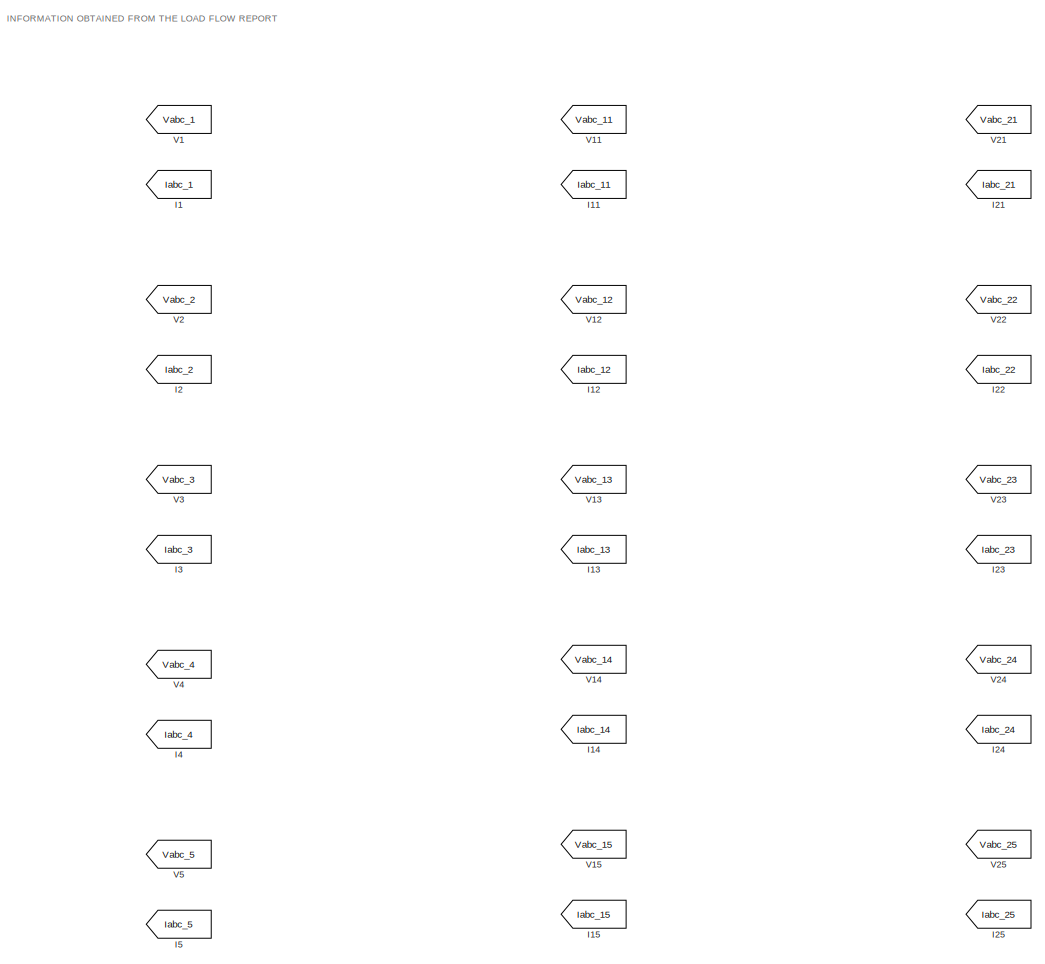
[diagram: Power-Flow - part 1/2, full width, top band]
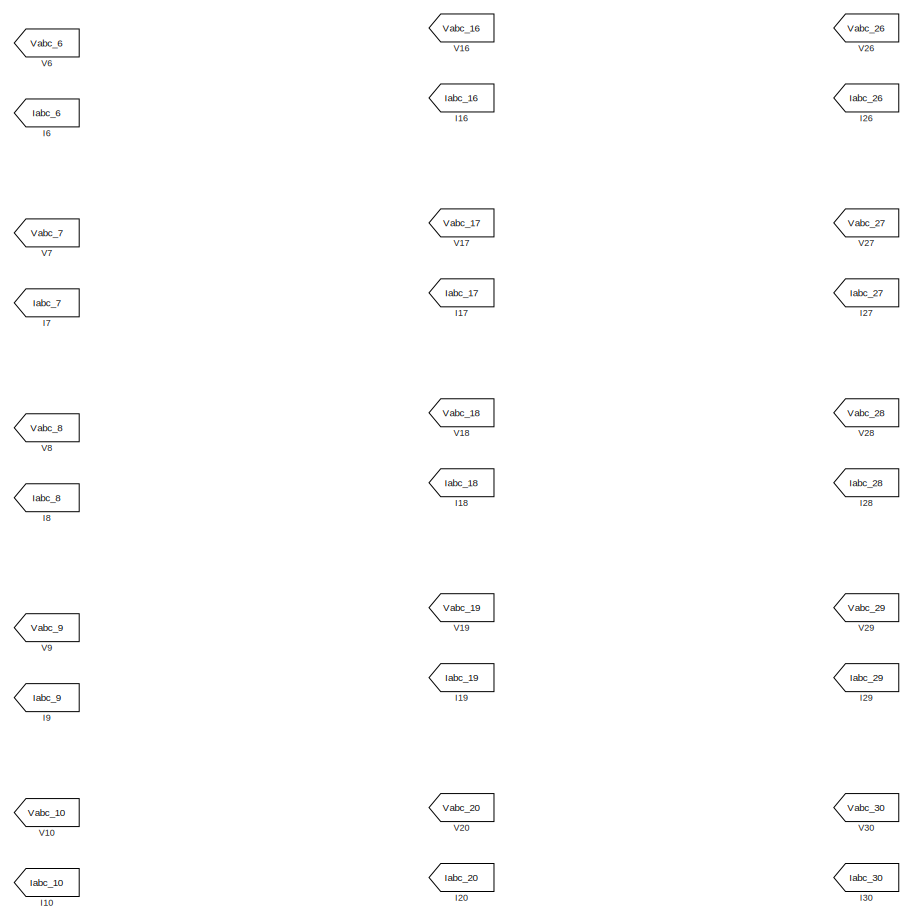
[diagram: Power-Flow - part 2/2, full width, bottom band]
BLOCK [SubSystem] Power-Flow
BLOCK [From] Power-Flow/I1
  GotoTag = Iabc_1
  TagVisibility = global
BLOCK [From] Power-Flow/I10
  GotoTag = Iabc_10
  TagVisibility = global
BLOCK [From] Power-Flow/I11
  GotoTag = Iabc_11
  TagVisibility = global
BLOCK [From] Power-Flow/I12
  GotoTag = Iabc_12
  TagVisibility = global
BLOCK [From] Power-Flow/I13
  GotoTag = Iabc_13
  TagVisibility = global
BLOCK [From] Power-Flow/I14
  GotoTag = Iabc_14
  TagVisibility = global
BLOCK [From] Power-Flow/I15
  GotoTag = Iabc_15
  TagVisibility = global
BLOCK [From] Power-Flow/I16
  GotoTag = Iabc_16
  TagVisibility = global
BLOCK [From] Power-Flow/I17
  GotoTag = Iabc_17
  TagVisibility = global
BLOCK [From] Power-Flow/I18
  GotoTag = Iabc_18
  TagVisibility = global
BLOCK [From] Power-Flow/I19
  GotoTag = Iabc_19
  TagVisibility = global
BLOCK [From] Power-Flow/I2
  GotoTag = Iabc_2
  TagVisibility = global
BLOCK [From] Power-Flow/I20
  GotoTag = Iabc_20
  TagVisibility = global
BLOCK [From] Power-Flow/I21
  GotoTag = Iabc_21
  TagVisibility = global
BLOCK [From] Power-Flow/I22
  GotoTag = Iabc_22
  TagVisibility = global
BLOCK [From] Power-Flow/I23
  GotoTag = Iabc_23
  TagVisibility = global
BLOCK [From] Power-Flow/I24
  GotoTag = Iabc_24
  TagVisibility = global
BLOCK [From] Power-Flow/I25
  GotoTag = Iabc_25
  TagVisibility = global
BLOCK [From] Power-Flow/I26
  GotoTag = Iabc_26
  TagVisibility = global
BLOCK [From] Power-Flow/I27
  GotoTag = Iabc_27
  TagVisibility = global
BLOCK [From] Power-Flow/I28
  GotoTag = Iabc_28
  TagVisibility = global
BLOCK [From] Power-Flow/I29
  GotoTag = Iabc_29
  TagVisibility = global
BLOCK [From] Power-Flow/I3
  GotoTag = Iabc_3
  TagVisibility = global
BLOCK [From] Power-Flow/I30
  GotoTag = Iabc_30
  TagVisibility = global
BLOCK [From] Power-Flow/I4
  GotoTag = Iabc_4
  TagVisibility = global
BLOCK [From] Power-Flow/I5
  GotoTag = Iabc_5
  TagVisibility = global
BLOCK [From] Power-Flow/I6
  GotoTag = Iabc_6
  TagVisibility = global
BLOCK [From] Power-Flow/I7
  GotoTag = Iabc_7
  TagVisibility = global
BLOCK [From] Power-Flow/I8
  GotoTag = Iabc_8
  TagVisibility = global
BLOCK [From] Power-Flow/I9
  GotoTag = Iabc_9
  TagVisibility = global
BLOCK [From] Power-Flow/V1
  GotoTag = Vabc_1
  TagVisibility = global
BLOCK [From] Power-Flow/V10
  GotoTag = Vabc_10
  TagVisibility = global
BLOCK [From] Power-Flow/V11
  GotoTag = Vabc_11
  TagVisibility = global
BLOCK [From] Power-Flow/V12
  GotoTag = Vabc_12
  TagVisibility = global
BLOCK [From] Power-Flow/V13
  GotoTag = Vabc_13
  TagVisibility = global
BLOCK [From] Power-Flow/V14
  GotoTag = Vabc_14
  TagVisibility = global
BLOCK [From] Power-Flow/V15
  GotoTag = Vabc_15
  TagVisibility = global
BLOCK [From] Power-Flow/V16
  GotoTag = Vabc_16
  TagVisibility = global
BLOCK [From] Power-Flow/V17
  GotoTag = Vabc_17
  TagVisibility = global
BLOCK [From] Power-Flow/V18
  GotoTag = Vabc_18
  TagVisibility = global
BLOCK [From] Power-Flow/V19
  GotoTag = Vabc_19
  TagVisibility = global
BLOCK [From] Power-Flow/V2
  GotoTag = Vabc_2
  TagVisibility = global
BLOCK [From] Power-Flow/V20
  GotoTag = Vabc_20
  TagVisibility = global
BLOCK [From] Power-Flow/V21
  GotoTag = Vabc_21
  TagVisibility = global
BLOCK [From] Power-Flow/V22
  GotoTag = Vabc_22
  TagVisibility = global
BLOCK [From] Power-Flow/V23
  GotoTag = Vabc_23
  TagVisibility = global
BLOCK [From] Power-Flow/V24
  GotoTag = Vabc_24
  TagVisibility = global
BLOCK [From] Power-Flow/V25
  GotoTag = Vabc_25
  TagVisibility = global
BLOCK [From] Power-Flow/V26
  GotoTag = Vabc_26
  TagVisibility = global
BLOCK [From] Power-Flow/V27
  GotoTag = Vabc_27
  TagVisibility = global
BLOCK [From] Power-Flow/V28
  GotoTag = Vabc_28
  TagVisibility = global
BLOCK [From] Power-Flow/V29
  GotoTag = Vabc_29
  TagVisibility = global
BLOCK [From] Power-Flow/V3
  GotoTag = Vabc_3
  TagVisibility = global
BLOCK [From] Power-Flow/V30
  GotoTag = Vabc_30
  TagVisibility = global
BLOCK [From] Power-Flow/V4
  GotoTag = Vabc_4
  TagVisibility = global
BLOCK [From] Power-Flow/V5
  GotoTag = Vabc_5
  TagVisibility = global
BLOCK [From] Power-Flow/V6
  GotoTag = Vabc_6
  TagVisibility = global
BLOCK [From] Power-Flow/V7
  GotoTag = Vabc_7
  TagVisibility = global
BLOCK [From] Power-Flow/V8
  GotoTag = Vabc_8
  TagVisibility = global
BLOCK [From] Power-Flow/V9
  GotoTag = Vabc_9
  TagVisibility = global
BLOCK [Product] Product1
BLOCK [Reference] Rbrk1  REF=spsSeriesRLCBranchLib/Series RLC Branch
  SourceBlock = spsSeriesRLCBranchLib/Series RLC Branch
  SourceType = Series RLC Branch
BLOCK [Reference] Rd  REF=spsSeriesRLCBranchLib/Series RLC Branch
  SourceBlock = spsSeriesRLCBranchLib/Series RLC Branch
  SourceType = Series RLC Branch
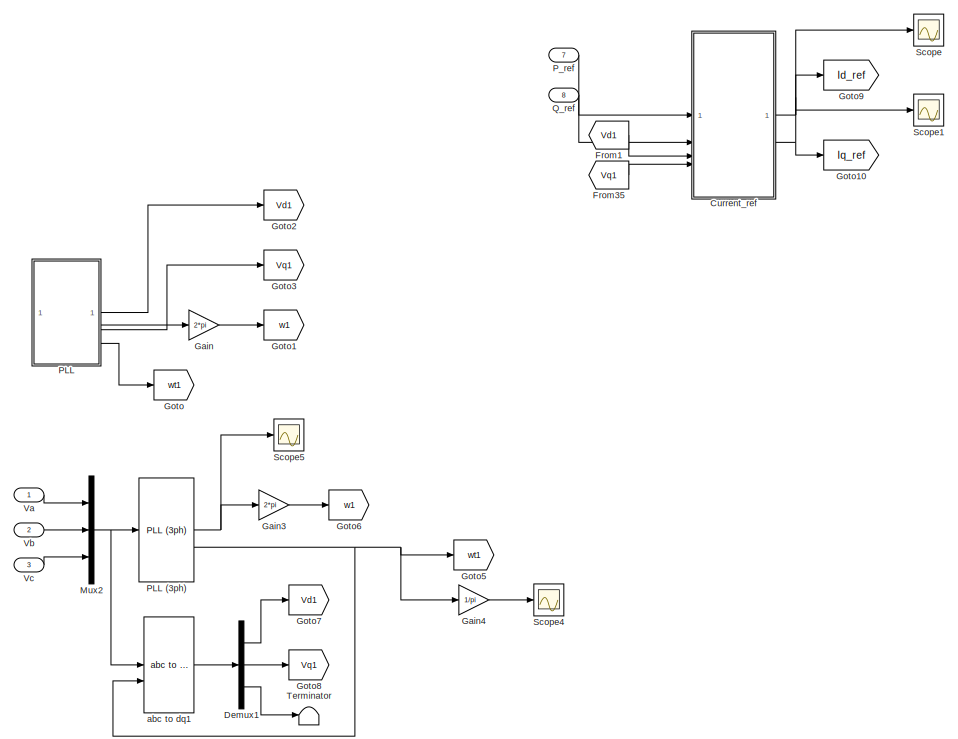
[diagram: Rectifier Control - part 1/2, left side, full height]
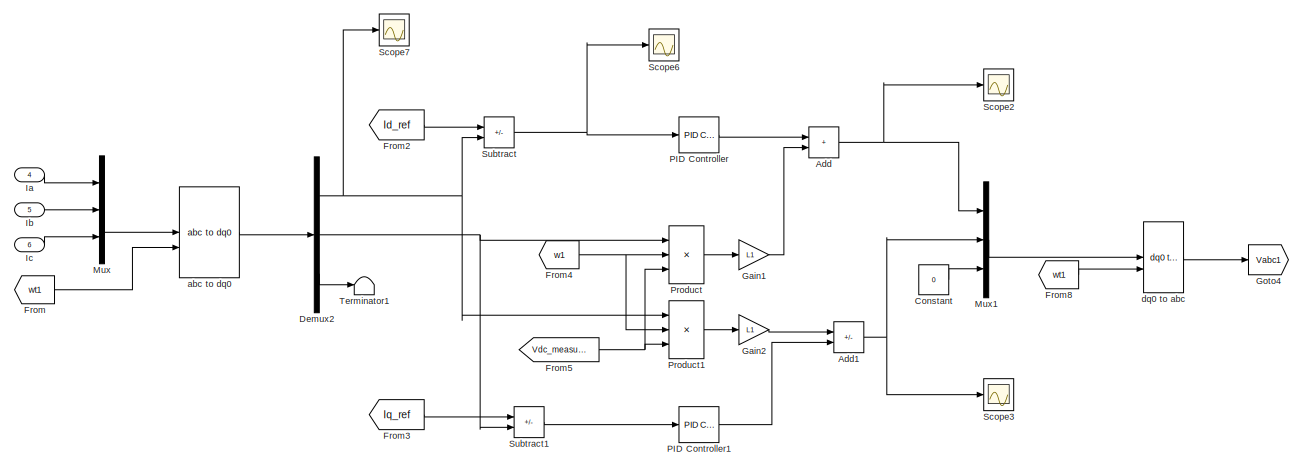
[diagram: Rectifier Control - part 2/2, middle right region]
BLOCK [SubSystem] Rectifier Control
BLOCK [Sum] Rectifier Control/Add
  IconShape = rectangular
BLOCK [Sum] Rectifier Control/Add1
  IconShape = rectangular
  Inputs = -+
BLOCK [Constant] Rectifier Control/Constant
  Value = 0
BLOCK [SubSystem] Rectifier Control/Current_ref
BLOCK [Sum] Rectifier Control/Current_ref/Add
  Commented = on
  IconShape = rectangular
BLOCK [Sum] Rectifier Control/Current_ref/Add1
  Commented = on
  IconShape = rectangular
  Inputs = +-
BLOCK [Sum] Rectifier Control/Current_ref/Add2
  IconShape = rectangular
BLOCK [Sum] Rectifier Control/Current_ref/Add3
  IconShape = rectangular
  Inputs = +-
BLOCK [Product] Rectifier Control/Current_ref/Divide
  Commented = on
  Inputs = */
BLOCK [Product] Rectifier Control/Current_ref/Divide1
  Commented = on
  Inputs = */
BLOCK [Product] Rectifier Control/Current_ref/Divide2
  Inputs = */
BLOCK [Product] Rectifier Control/Current_ref/Divide3
  Inputs = */
BLOCK [Gain] Rectifier Control/Current_ref/Gain
  Commented = on
  Gain = 3.0/2.0
BLOCK [Gain] Rectifier Control/Current_ref/Gain1
  Gain = 3.0/2.0
BLOCK [Outport] Rectifier Control/Current_ref/Id_ref
BLOCK [Outport] Rectifier Control/Current_ref/Iq_ref
  Port = 2
BLOCK [Inport] Rectifier Control/Current_ref/P_ref
BLOCK [Product] Rectifier Control/Current_ref/Product
  Commented = on
BLOCK [Product] Rectifier Control/Current_ref/Product1
  Commented = on
BLOCK [Product] Rectifier Control/Current_ref/Product2
  Commented = on
BLOCK [Product] Rectifier Control/Current_ref/Product3
  Commented = on
BLOCK [Product] Rectifier Control/Current_ref/Product4
BLOCK [Product] Rectifier Control/Current_ref/Product5
BLOCK [Product] Rectifier Control/Current_ref/Product6
BLOCK [Product] Rectifier Control/Current_ref/Product7
BLOCK [Inport] Rectifier Control/Current_ref/Q_ref
  Port = 2
BLOCK [Saturate] Rectifier Control/Current_ref/Saturation
  Commented = on
  LowerLimit = 0.1
  UpperLimit = inf
BLOCK [Saturate] Rectifier Control/Current_ref/Saturation1
  LowerLimit = 0.1
  UpperLimit = inf
BLOCK [SubSystem] Rectifier Control/Current_ref/Squared_Vt
  Commented = on
BLOCK [Sum] Rectifier Control/Current_ref/Squared_Vt/Add
  IconShape = rectangular
BLOCK [Inport] Rectifier Control/Current_ref/Squared_Vt/Ed
BLOCK [Inport] Rectifier Control/Current_ref/Squared_Vt/Eq
  Port = 2
BLOCK [Outport] Rectifier Control/Current_ref/Squared_Vt/Et^2
BLOCK [Product] Rectifier Control/Current_ref/Squared_Vt/Product
BLOCK [Product] Rectifier Control/Current_ref/Squared_Vt/Product1
BLOCK [SubSystem] Rectifier Control/Current_ref/Squared_Vt1
BLOCK [Sum] Rectifier Control/Current_ref/Squared_Vt1/Add
  IconShape = rectangular
BLOCK [Inport] Rectifier Control/Current_ref/Squared_Vt1/Ed
BLOCK [Inport] Rectifier Control/Current_ref/Squared_Vt1/Eq
  Port = 2
BLOCK [Outport] Rectifier Control/Current_ref/Squared_Vt1/Et^2
BLOCK [Product] Rectifier Control/Current_ref/Squared_Vt1/Product
BLOCK [Product] Rectifier Control/Current_ref/Squared_Vt1/Product1
BLOCK [Inport] Rectifier Control/Current_ref/Vd
  Port = 3
BLOCK [Inport] Rectifier Control/Current_ref/Vq
  Port = 4
BLOCK [Demux] Rectifier Control/Demux1
  Outputs = 3
BLOCK [Demux] Rectifier Control/Demux2
  Outputs = 3
BLOCK [From] Rectifier Control/From
  GotoTag = wt1
BLOCK [From] Rectifier Control/From1
  GotoTag = Vd1
BLOCK [From] Rectifier Control/From2
  GotoTag = Id_ref
BLOCK [From] Rectifier Control/From3
  GotoTag = Iq_ref
BLOCK [From] Rectifier Control/From35
  GotoTag = Vq1
BLOCK [From] Rectifier Control/From4
  GotoTag = w1
BLOCK [From] Rectifier Control/From5
  GotoTag = Vdc_measure
  TagVisibility = global
BLOCK [From] Rectifier Control/From8
  GotoTag = wt1
BLOCK [Gain] Rectifier Control/Gain
  Commented = on
  Gain = 2*pi
BLOCK [Gain] Rectifier Control/Gain1
  Commented = on
  Gain = L1
BLOCK [Gain] Rectifier Control/Gain2
  Commented = on
  Gain = L1
BLOCK [Gain] Rectifier Control/Gain3
  Gain = 2*pi
BLOCK [Gain] Rectifier Control/Gain4
  Commented = on
  Gain = 1/pi
BLOCK [Goto] Rectifier Control/Goto
  Commented = on
  GotoTag = wt1
BLOCK [Goto] Rectifier Control/Goto1
  Commented = on
  GotoTag = w1
  TagVisibility = global
BLOCK [Goto] Rectifier Control/Goto10
  GotoTag = Iq_ref
BLOCK [Goto] Rectifier Control/Goto2
  Commented = on
  GotoTag = Vd1
  TagVisibility = global
BLOCK [Goto] Rectifier Control/Goto3
  Commented = on
  GotoTag = Vq1
  TagVisibility = global
BLOCK [Goto] Rectifier Control/Goto4
  GotoTag = Vabc1
  TagVisibility = global
BLOCK [Goto] Rectifier Control/Goto5
  GotoTag = wt1
BLOCK [Goto] Rectifier Control/Goto6
  GotoTag = w1
BLOCK [Goto] Rectifier Control/Goto7
  GotoTag = Vd1
BLOCK [Goto] Rectifier Control/Goto8
  GotoTag = Vq1
BLOCK [Goto] Rectifier Control/Goto9
  GotoTag = Id_ref
BLOCK [Inport] Rectifier Control/Ia
  Port = 4
BLOCK [Inport] Rectifier Control/Ib
  Port = 5
BLOCK [Inport] Rectifier Control/Ic
  Port = 6
BLOCK [Mux] Rectifier Control/Mux
  DisplayOption = bar
  Inputs = 3
BLOCK [Mux] Rectifier Control/Mux1
  DisplayOption = bar
  Inputs = 3
BLOCK [Mux] Rectifier Control/Mux2
  DisplayOption = bar
  Inputs = 3
BLOCK [Reference] Rectifier Control/PID Controller  REF=slpidlib/PID Controller
  SourceBlock = slpidlib/PID Controller
  SourceType = PID 1dof
BLOCK [Reference] Rectifier Control/PID Controller1  REF=slpidlib/PID Controller
  SourceBlock = slpidlib/PID Controller
  SourceType = PID 1dof
BLOCK [SubSystem] Rectifier Control/PLL
  Commented = on
BLOCK [Reference] Rectifier Control/PLL (3ph)  REF=spsPLL3phLib/PLL
(3ph)
  SourceBlock = spsPLL3phLib/PLL\n(3ph)
  SourceType = PLL (3ph)
BLOCK [Inport] Rectifier Control/PLL/A
BLOCK [Inport] Rectifier Control/PLL/B
  Port = 2
BLOCK [Inport] Rectifier Control/PLL/C
  Port = 3
BLOCK [Demux] Rectifier Control/PLL/Demux2
  Outputs = 3
BLOCK [DiscreteIntegrator] Rectifier Control/PLL/Discrete-Time Integrator
  ICPrevOutput = DiscIntNeverNeededParam
  ICPrevScaledInput = DiscIntNeverNeededParam
  InitialConditionSetting = Auto
  SampleTime = -1
BLOCK [Display] Rectifier Control/PLL/Display
  Decimation = 1
BLOCK [Product] Rectifier Control/PLL/Divide
  Inputs = //
BLOCK [Reference] Rectifier Control/PLL/First-Order Filter  REF=spsFirstOrderFilterLib/First-Order
Filter
  SourceBlock = spsFirstOrderFilterLib/First-Order\nFilter
  SourceType = First-Order Filter
BLOCK [Reference] Rectifier Control/PLL/First-Order Filter1  REF=spsFirstOrderFilterLib/First-Order
Filter
  SourceBlock = spsFirstOrderFilterLib/First-Order\nFilter
  SourceType = First-Order Filter
BLOCK [From] Rectifier Control/PLL/From
  GotoTag = w
  TagVisibility = global
BLOCK [Integrator] Rectifier Control/PLL/Integrator
  Commented = on
BLOCK [Mux] Rectifier Control/PLL/Mux
  DisplayOption = bar
  Inputs = 3
BLOCK [Reference] Rectifier Control/PLL/Normalization  REF=dspmathops/Normalization
  SourceBlock = dspmathops/Normalization
  SourceType = Normalization
BLOCK [Reference] Rectifier Control/PLL/PID Controller1  REF=pid_lib/PID Controller
  SourceBlock = pid_lib/PID Controller
  SourceType = PID 1dof
BLOCK [RateLimiter] Rectifier Control/PLL/Rate Limiter
  SampleTimeMode = inherited
BLOCK [Reference] Rectifier Control/PLL/Second-Order Filter  REF=spsSecondOrderFilterLib/Second-Order
Filter
  SourceBlock = spsSecondOrderFilterLib/Second-Order\nFilter
  SourceType = Second-Order Filter
BLOCK [Sum] Rectifier Control/PLL/Sum
  Inputs = |++
BLOCK [Reference] Rectifier Control/PLL/abc to dq0  REF=spsabctodq0Lib/abc to dq0
  SourceBlock = spsabctodq0Lib/abc to dq0
  SourceType = abc to dq0 Transformation
BLOCK [Outport] Rectifier Control/PLL/d
BLOCK [Outport] Rectifier Control/PLL/f
  Port = 3
BLOCK [Outport] Rectifier Control/PLL/q
  Port = 2
BLOCK [Outport] Rectifier Control/PLL/wt
  Port = 4
BLOCK [Inport] Rectifier Control/P_ref
  Port = 7
BLOCK [Product] Rectifier Control/Product
  Inputs = **/
BLOCK [Product] Rectifier Control/Product1
  Inputs = **/
BLOCK [Inport] Rectifier Control/Q_ref
  Port = 8
BLOCK [Scope] Rectifier Control/Scope
  Commented = on
  Floating = off
  NumInputPorts = 1
  ScopeSpecificationString = Simulink.scopes.TimeScopeBlockCfg('CurrentConfiguration', extmgr.ConfigurationSet(extmgr.Configuration('Core','General UI',true),extmgr.Configuration('Core','Source UI',true),extmgr.Configuration('Sources','WiredSimulink',true,'DataLoggingVariableName','ScopeData2'),extmgr.Configuration('Visuals','Time Domain',true,'SerializedDisplays',{struct('MinYLimReal','-246.03951','MaxYLimReal','745.56316','...<+1459ch>
BLOCK [Scope] Rectifier Control/Scope1
  Commented = on
  Floating = off
  NumInputPorts = 1
  ScopeSpecificationString = Simulink.scopes.TimeScopeBlockCfg('CurrentConfiguration', extmgr.ConfigurationSet(extmgr.Configuration('Core','General UI',true),extmgr.Configuration('Core','Source UI',true),extmgr.Configuration('Sources','WiredSimulink',true,'DataLoggingVariableName','ScopeData3'),extmgr.Configuration('Visuals','Time Domain',true,'SerializedDisplays',{struct('MinYLimReal','-352.4798','MaxYLimReal','612.01493','Y...<+1457ch>
BLOCK [Scope] Rectifier Control/Scope2
  Commented = on
  Floating = off
  NumInputPorts = 1
  ScopeSpecificationString = Simulink.scopes.TimeScopeBlockCfg('CurrentConfiguration', extmgr.ConfigurationSet(extmgr.Configuration('Core','General UI',true),extmgr.Configuration('Core','Source UI',true),extmgr.Configuration('Sources','WiredSimulink',true,'DataLoggingVariableName','ScopeData4'),extmgr.Configuration('Visuals','Time Domain',true,'SerializedDisplays',{struct('MinYLimReal','-0.33937','MaxYLimReal','1.14882','YLab...<+1436ch>
BLOCK [Scope] Rectifier Control/Scope3
  Commented = on
  Floating = off
  NumInputPorts = 1
  ScopeSpecificationString = Simulink.scopes.TimeScopeBlockCfg('CurrentConfiguration', extmgr.ConfigurationSet(extmgr.Configuration('Core','General UI',true),extmgr.Configuration('Core','Source UI',true),extmgr.Configuration('Sources','WiredSimulink',true,'DataLoggingVariableName','ScopeData5'),extmgr.Configuration('Visuals','Time Domain',true,'SerializedDisplays',{struct('MinYLimReal','-1.25','MaxYLimReal','1.25','YLabelReal...<+1419ch>
BLOCK [Scope] Rectifier Control/Scope4
  Commented = on
  Floating = off
  NumInputPorts = 1
  ScopeSpecificationString = Simulink.scopes.TimeScopeBlockCfg('CurrentConfiguration', extmgr.ConfigurationSet(extmgr.Configuration('Core','General UI',true),extmgr.Configuration('Core','Source UI',true),extmgr.Configuration('Sources','WiredSimulink',true,'DataLoggingVariableName','ScopeData1'),extmgr.Configuration('Visuals','Time Domain',true,'SerializedDisplays',{struct('MinYLimReal','-0.25','MaxYLimReal','2.24998','YLabelR...<+1457ch>
BLOCK [Scope] Rectifier Control/Scope5
  Commented = on
  Floating = off
  NumInputPorts = 1
  ScopeSpecificationString = Simulink.scopes.TimeScopeBlockCfg('CurrentConfiguration', extmgr.ConfigurationSet(extmgr.Configuration('Core','General UI',true),extmgr.Configuration('Core','Source UI',true),extmgr.Configuration('Sources','WiredSimulink',true,'DataLoggingVariableName','ScopeData2'),extmgr.Configuration('Visuals','Time Domain',true,'SerializedDisplays',{struct('MinYLimReal','59.47826','MaxYLimReal','60.31615','YLa...<+1474ch>
BLOCK [Scope] Rectifier Control/Scope6
  Commented = on
  Floating = off
  NumInputPorts = 1
  ScopeSpecificationString = Simulink.scopes.TimeScopeBlockCfg('CurrentConfiguration', extmgr.ConfigurationSet(extmgr.Configuration('Core','General UI',true),extmgr.Configuration('Core','Source UI',true),extmgr.Configuration('Sources','WiredSimulink',true,'DataLoggingVariableName','ScopeData3'),extmgr.Configuration('Visuals','Time Domain',true,'SerializedDisplays',{struct('MinYLimReal','-12503.98133','MaxYLimReal','9267.65409...<+1469ch>
BLOCK [Scope] Rectifier Control/Scope7
  Commented = on
  Floating = off
  NumInputPorts = 1
  ScopeSpecificationString = Simulink.scopes.TimeScopeBlockCfg('CurrentConfiguration', extmgr.ConfigurationSet(extmgr.Configuration('Core','General UI',true),extmgr.Configuration('Core','Source UI',true),extmgr.Configuration('Sources','WiredSimulink',true,'DataLoggingVariableName','ScopeData4'),extmgr.Configuration('Visuals','Time Domain',true,'SerializedDisplays',{struct('MinYLimReal','-9184.79532','MaxYLimReal','12729.99569...<+1466ch>
BLOCK [Sum] Rectifier Control/Subtract
  IconShape = rectangular
  Inputs = +-
BLOCK [Sum] Rectifier Control/Subtract1
  IconShape = rectangular
  Inputs = +-
BLOCK [Terminator] Rectifier Control/Terminator
BLOCK [Terminator] Rectifier Control/Terminator1
BLOCK [Inport] Rectifier Control/Va
BLOCK [Inport] Rectifier Control/Vb
  Port = 2
BLOCK [Inport] Rectifier Control/Vc
  Port = 3
BLOCK [Reference] Rectifier Control/abc to dq0  REF=spsabctodq0Lib/abc to dq0
  SourceBlock = spsabctodq0Lib/abc to dq0
  SourceType = abc to dq0 Transformation
BLOCK [Reference] Rectifier Control/abc to dq1  REF=spsabctodq0Lib/abc to dq0
  SourceBlock = spsabctodq0Lib/abc to dq0
  SourceType = abc to dq0 Transformation
BLOCK [Reference] Rectifier Control/dq0 to abc  REF=spsdq0toabcLib/dq0 to abc
  SourceBlock = spsdq0toabcLib/dq0 to abc
  SourceType = dq0 to abc Transformation
BLOCK [Reference] Reusens  REF=spsThreePhaseVIMeasurementLib/Three-Phase
V-I Measurement
  NameLocation = top
  SourceBlock = spsThreePhaseVIMeasurementLib/Three-Phase\nV-I Measurement
  SourceType = Three-Phase VI Measurement
BLOCK [Reference] Roanoke  REF=spsThreePhaseVIMeasurementLib/Three-Phase
V-I Measurement
  NameLocation = left
  SourceBlock = spsThreePhaseVIMeasurementLib/Three-Phase\nV-I Measurement
  SourceType = Three-Phase VI Measurement
BLOCK [Reference] Roanoke1  REF=spsThreePhaseVIMeasurementLib/Three-Phase
V-I Measurement
  NameLocation = top
  SourceBlock = spsThreePhaseVIMeasurementLib/Three-Phase\nV-I Measurement
  SourceType = Three-Phase VI Measurement
BLOCK [Reference] Roanoke2  REF=spsThreePhaseVIMeasurementLib/Three-Phase
V-I Measurement
  NameLocation = top
  SourceBlock = spsThreePhaseVIMeasurementLib/Three-Phase\nV-I Measurement
  SourceType = Three-Phase VI Measurement
BLOCK [Reference] Roanoke3  REF=spsThreePhaseVIMeasurementLib/Three-Phase
V-I Measurement
  NameLocation = left
  SourceBlock = spsThreePhaseVIMeasurementLib/Three-Phase\nV-I Measurement
  SourceType = Three-Phase VI Measurement
BLOCK [Scope] Scope
  Floating = off
  NumInputPorts = 2
  ScopeSpecificationString = Simulink.scopes.TimeScopeBlockCfg('CurrentConfiguration', extmgr.ConfigurationSet(extmgr.Configuration('Core','General UI',true),extmgr.Configuration('Core','Source UI',true),extmgr.Configuration('Sources','WiredSimulink',true,'DataLoggingVariableName','ScopeData1'),extmgr.Configuration('Visuals','Time Domain',true,'SerializedDisplays',{struct('MinYLimReal','-213553608.22741','MaxYLimReal','356759...<+2303ch>
BLOCK [Scope] Scope1
  Floating = off
  NumInputPorts = 4
  ScopeSpecificationString = Simulink.scopes.TimeScopeBlockCfg('CurrentConfiguration', extmgr.ConfigurationSet(extmgr.Configuration('Core','General UI',true),extmgr.Configuration('Core','Source UI',true),extmgr.Configuration('Sources','WiredSimulink',true,'DataLoggingVariableName','ScopeData3'),extmgr.Configuration('Visuals','Time Domain',true,'SerializedDisplays',{struct('MinYLimReal','-49185.72698','MaxYLimReal','47284.4363...<+4951ch>
BLOCK [Scope] Scope2
  Floating = off
  NumInputPorts = 2
  ScopeSpecificationString = Simulink.scopes.TimeScopeBlockCfg('CurrentConfiguration', extmgr.ConfigurationSet(extmgr.Configuration('Core','General UI',true),extmgr.Configuration('Core','Source UI',true),extmgr.Configuration('Sources','WiredSimulink',true,'DataLoggingVariableName','ScopeData2'),extmgr.Configuration('Visuals','Time Domain',true,'SerializedDisplays',{struct('MinYLimReal','-98917468.95288','MaxYLimReal','1165440...<+2301ch>
BLOCK [Scope] Scope22
  Floating = off
  NumInputPorts = 3
  ScopeSpecificationString = Simulink.scopes.TimeScopeBlockCfg('CurrentConfiguration', extmgr.ConfigurationSet(extmgr.Configuration('Core','General UI',true),extmgr.Configuration('Core','Source UI',true),extmgr.Configuration('Sources','WiredSimulink',true,'DataLoggingVariableName','ScopeData5'),extmgr.Configuration('Visuals','Time Domain',true,'SerializedDisplays',{struct('MinYLimReal','-8740.10973','MaxYLimReal','78660.98818...<+2914ch>
BLOCK [Scope] Scope23
  Commented = on
  Floating = off
  NumInputPorts = 1
  ScopeSpecificationString = Simulink.scopes.TimeScopeBlockCfg('CurrentConfiguration', extmgr.ConfigurationSet(extmgr.Configuration('Core','General UI',true),extmgr.Configuration('Core','Source UI',true),extmgr.Configuration('Sources','WiredSimulink',true,'DataLoggingVariableName','ScopeData6'),extmgr.Configuration('Visuals','Time Domain',true,'SerializedDisplays',{struct('MinYLimReal','4375000.00000','MaxYLimReal','10625000....<+1486ch>
BLOCK [Scope] Scope24
  Floating = off
  NumInputPorts = 1
  ScopeSpecificationString = Simulink.scopes.TimeScopeBlockCfg('CurrentConfiguration', extmgr.ConfigurationSet(extmgr.Configuration('Core','General UI',true),extmgr.Configuration('Core','Source UI',true),extmgr.Configuration('Sources','WiredSimulink',true,'DataLoggingVariableName','ScopeData7'),extmgr.Configuration('Visuals','Time Domain',true,'SerializedDisplays',{struct('MinYLimReal','-43603.2418','MaxYLimReal','43961.15716...<+1643ch>
BLOCK [Scope] Scope25
  Floating = off
  NumInputPorts = 1
  ScopeSpecificationString = Simulink.scopes.TimeScopeBlockCfg('CurrentConfiguration', extmgr.ConfigurationSet(extmgr.Configuration('Core','General UI',true),extmgr.Configuration('Core','Source UI',true),extmgr.Configuration('Sources','WiredSimulink',true,'DataLoggingVariableName','ScopeData8'),extmgr.Configuration('Visuals','Time Domain',true,'SerializedDisplays',{struct('MinYLimReal','-447.1289','MaxYLimReal','420.25789','Y...<+1560ch>
BLOCK [Scope] Scope26
  Floating = off
  NumInputPorts = 1
  ScopeSpecificationString = Simulink.scopes.TimeScopeBlockCfg('CurrentConfiguration', extmgr.ConfigurationSet(extmgr.Configuration('Core','General UI',true),extmgr.Configuration('Core','Source UI',true),extmgr.Configuration('Sources','WiredSimulink',true,'DataLoggingVariableName','ScopeData9'),extmgr.Configuration('Visuals','Time Domain',true,'SerializedDisplays',{struct('MinYLimReal','-30682.65224','MaxYLimReal','32016.8109...<+1573ch>
BLOCK [Scope] Scope27
  Commented = on
  Floating = off
  NumInputPorts = 1
  ScopeSpecificationString = Simulink.scopes.TimeScopeBlockCfg('CurrentConfiguration', extmgr.ConfigurationSet(extmgr.Configuration('Core','General UI',true),extmgr.Configuration('Core','Source UI',true),extmgr.Configuration('Sources','WiredSimulink',true,'DataLoggingVariableName','ScopeData10'),extmgr.Configuration('Visuals','Time Domain',true,'SerializedDisplays',{struct('MinYLimReal','-4664.02319','MaxYLimReal','4782.75865...<+1572ch>
BLOCK [Scope] Scope29
  Commented = on
  Floating = off
  NumInputPorts = 1
  ScopeSpecificationString = Simulink.scopes.TimeScopeBlockCfg('CurrentConfiguration', extmgr.ConfigurationSet(extmgr.Configuration('Core','General UI',true),extmgr.Configuration('Core','Source UI',true),extmgr.Configuration('Sources','WiredSimulink',true,'DataLoggingVariableName','ScopeData12'),extmgr.Configuration('Visuals','Time Domain',true,'SerializedDisplays',{struct('MinYLimReal','-0.125','MaxYLimReal','1.125','YLabelR...<+1387ch>
BLOCK [Scope] Scope33
  Floating = off
  NumInputPorts = 4
  ScopeSpecificationString = Simulink.scopes.TimeScopeBlockCfg('CurrentConfiguration', extmgr.ConfigurationSet(extmgr.Configuration('Core','General UI',true),extmgr.Configuration('Core','Source UI',true),extmgr.Configuration('Sources','WiredSimulink',true,'DataLoggingVariableName','ScopeData16'),extmgr.Configuration('Visuals','Time Domain',true,'SerializedDisplays',{struct('MinYLimReal','-70476.41298','MaxYLimReal','69755.858...<+3574ch>
BLOCK [Scope] Scope34
  Floating = off
  NumInputPorts = 4
  ScopeSpecificationString = Simulink.scopes.TimeScopeBlockCfg('CurrentConfiguration', extmgr.ConfigurationSet(extmgr.Configuration('Core','General UI',true),extmgr.Configuration('Core','Source UI',true),extmgr.Configuration('Sources','WiredSimulink',true,'DataLoggingVariableName','ScopeData17'),extmgr.Configuration('Visuals','Time Domain',true,'SerializedDisplays',{struct('MinYLimReal','-71697.37487','MaxYLimReal','71604.507...<+3562ch>
BLOCK [Scope] Scope35
  Commented = on
  Floating = off
  NumInputPorts = 3
  ScopeSpecificationString = Simulink.scopes.TimeScopeBlockCfg('CurrentConfiguration', extmgr.ConfigurationSet(extmgr.Configuration('Core','General UI',true),extmgr.Configuration('Core','Source UI',true),extmgr.Configuration('Sources','WiredSimulink',true,'DataLoggingVariableName','ScopeData18'),extmgr.Configuration('Visuals','Time Domain',true,'SerializedDisplays',{struct('MinYLimReal','-39439.71105','MaxYLimReal','32660.111...<+1479ch>
BLOCK [Scope] Scope36
  Commented = on
  Floating = off
  NumInputPorts = 3
  ScopeSpecificationString = Simulink.scopes.TimeScopeBlockCfg('CurrentConfiguration', extmgr.ConfigurationSet(extmgr.Configuration('Core','General UI',true),extmgr.Configuration('Core','Source UI',true),extmgr.Configuration('Sources','WiredSimulink',true,'DataLoggingVariableName','ScopeData19'),extmgr.Configuration('Visuals','Time Domain',true,'SerializedDisplays',{struct('MinYLimReal','-30041.20611','MaxYLimReal','28858.354...<+1478ch>
BLOCK [Reference] Series RLC Branch1  REF=spsSeriesRLCBranchLib/Series RLC Branch
  SourceBlock = spsSeriesRLCBranchLib/Series RLC Branch
  SourceType = Series RLC Branch
BLOCK [Reference] Series RLC Branch12  REF=spsSeriesRLCBranchLib/Series RLC Branch
  SourceBlock = spsSeriesRLCBranchLib/Series RLC Branch
  SourceType = Series RLC Branch
BLOCK [Reference] Series RLC Branch13  REF=spsSeriesRLCBranchLib/Series RLC Branch
  NameLocation = left
  SourceBlock = spsSeriesRLCBranchLib/Series RLC Branch
  SourceType = Series RLC Branch
BLOCK [Reference] Series RLC Branch14  REF=spsSeriesRLCBranchLib/Series RLC Branch
  SourceBlock = spsSeriesRLCBranchLib/Series RLC Branch
  SourceType = Series RLC Branch
BLOCK [Reference] Series RLC Branch15  REF=spsSeriesRLCBranchLib/Series RLC Branch
  NameLocation = right
  SourceBlock = spsSeriesRLCBranchLib/Series RLC Branch
  SourceType = Series RLC Branch
BLOCK [Reference] Series RLC Branch16  REF=spsSeriesRLCBranchLib/Series RLC Branch
  NameLocation = right
  SourceBlock = spsSeriesRLCBranchLib/Series RLC Branch
  SourceType = Series RLC Branch
BLOCK [Reference] Series RLC Branch19  REF=spsSeriesRLCBranchLib/Series RLC Branch
  NameLocation = right
  SourceBlock = spsSeriesRLCBranchLib/Series RLC Branch
  SourceType = Series RLC Branch
BLOCK [Reference] Series RLC Branch2  REF=spsSeriesRLCBranchLib/Series RLC Branch
  NameLocation = left
  SourceBlock = spsSeriesRLCBranchLib/Series RLC Branch
  SourceType = Series RLC Branch
BLOCK [Reference] Series RLC Branch20  REF=spsSeriesRLCBranchLib/Series RLC Branch
  NameLocation = right
  SourceBlock = spsSeriesRLCBranchLib/Series RLC Branch
  SourceType = Series RLC Branch
BLOCK [Reference] Series RLC Branch21  REF=spsSeriesRLCBranchLib/Series RLC Branch
  NameLocation = right
  SourceBlock = spsSeriesRLCBranchLib/Series RLC Branch
  SourceType = Series RLC Branch
BLOCK [Reference] Series RLC Branch22  REF=spsSeriesRLCBranchLib/Series RLC Branch
  NameLocation = right
  SourceBlock = spsSeriesRLCBranchLib/Series RLC Branch
  SourceType = Series RLC Branch
BLOCK [Reference] Series RLC Branch25  REF=spsSeriesRLCBranchLib/Series RLC Branch
  NameLocation = right
  SourceBlock = spsSeriesRLCBranchLib/Series RLC Branch
  SourceType = Series RLC Branch
BLOCK [Reference] Series RLC Branch26  REF=spsSeriesRLCBranchLib/Series RLC Branch
  SourceBlock = spsSeriesRLCBranchLib/Series RLC Branch
  SourceType = Series RLC Branch
BLOCK [Reference] Series RLC Branch3  REF=spsSeriesRLCBranchLib/Series RLC Branch
  NameLocation = left
  SourceBlock = spsSeriesRLCBranchLib/Series RLC Branch
  SourceType = Series RLC Branch
BLOCK [Reference] Series RLC Branch4  REF=spsSeriesRLCBranchLib/Series RLC Branch
  NameLocation = left
  SourceBlock = spsSeriesRLCBranchLib/Series RLC Branch
  SourceType = Series RLC Branch
BLOCK [Reference] Series RLC Branch45  REF=spsSeriesRLCBranchLib/Series RLC Branch
  SourceBlock = spsSeriesRLCBranchLib/Series RLC Branch
  SourceType = Series RLC Branch
BLOCK [Reference] Series RLC Branch46  REF=spsSeriesRLCBranchLib/Series RLC Branch
  SourceBlock = spsSeriesRLCBranchLib/Series RLC Branch
  SourceType = Series RLC Branch
BLOCK [Reference] Series RLC Branch47  REF=spsSeriesRLCBranchLib/Series RLC Branch
  NameLocation = top
  SourceBlock = spsSeriesRLCBranchLib/Series RLC Branch
  SourceType = Series RLC Branch
BLOCK [Reference] Series RLC Branch48  REF=spsSeriesRLCBranchLib/Series RLC Branch
  NameLocation = top
  SourceBlock = spsSeriesRLCBranchLib/Series RLC Branch
  SourceType = Series RLC Branch
BLOCK [Reference] Series RLC Branch49  REF=spsSeriesRLCBranchLib/Series RLC Branch
  NameLocation = top
  SourceBlock = spsSeriesRLCBranchLib/Series RLC Branch
  SourceType = Series RLC Branch
BLOCK [Reference] Series RLC Branch5  REF=spsSeriesRLCBranchLib/Series RLC Branch
  SourceBlock = spsSeriesRLCBranchLib/Series RLC Branch
  SourceType = Series RLC Branch
BLOCK [Reference] Series RLC Branch50  REF=spsSeriesRLCBranchLib/Series RLC Branch
  SourceBlock = spsSeriesRLCBranchLib/Series RLC Branch
  SourceType = Series RLC Branch
BLOCK [Reference] Series RLC Branch6  REF=spsSeriesRLCBranchLib/Series RLC Branch
  SourceBlock = spsSeriesRLCBranchLib/Series RLC Branch
  SourceType = Series RLC Branch
BLOCK [Reference] Series RLC Branch7  REF=spsSeriesRLCBranchLib/Series RLC Branch
  NameLocation = left
  SourceBlock = spsSeriesRLCBranchLib/Series RLC Branch
  SourceType = Series RLC Branch
BLOCK [Reference] Series RLC Branch9  REF=spsSeriesRLCBranchLib/Series RLC Branch
  NameLocation = left
  SourceBlock = spsSeriesRLCBranchLib/Series RLC Branch
  SourceType = Series RLC Branch
BLOCK [Step] Step
  After = 20e6
  Before = 5e6
  Commented = on
  SampleTime = 0
  Time = 5
BLOCK [Reference] Three-Phase V-I Measurement3  REF=spsThreePhaseVIMeasurementLib/Three-Phase
V-I Measurement
  SourceBlock = spsThreePhaseVIMeasurementLib/Three-Phase\nV-I Measurement
  SourceType = Three-Phase VI Measurement
BLOCK [Reference] Three-Phase V-I Measurement4  REF=spsThreePhaseVIMeasurementLib/Three-Phase
V-I Measurement
  SourceBlock = spsThreePhaseVIMeasurementLib/Three-Phase\nV-I Measurement
  SourceType = Three-Phase VI Measurement
BLOCK [ToWorkspace] To Workspace5
  FixptAsFi = on
  MaxDataPoints = inf
  SampleTime = -1
  SaveFormat = Timeseries
  VariableName = Vabc
BLOCK [ToWorkspace] To Workspace6
  FixptAsFi = on
  MaxDataPoints = inf
  SampleTime = -1
  SaveFormat = Timeseries
  VariableName = Iabc
BLOCK [ToWorkspace] To Workspace7
  FixptAsFi = on
  MaxDataPoints = inf
  SampleTime = -1
  SaveFormat = Timeseries
  VariableName = Vabc3
BLOCK [ToWorkspace] To Workspace8
  FixptAsFi = on
  MaxDataPoints = inf
  SampleTime = -1
  SaveFormat = Timeseries
  VariableName = Iabc3
BLOCK [Reference] Transformer1 132kV // 33kV2  REF=spsThreePhaseTransformerTwoWindingsLib/Three-Phase
Transformer
(Two Windings)
  NameLocation = right
  SourceBlock = spsThreePhaseTransformerTwoWindingsLib/Three-Phase\nTransformer\n(Two Windings)
  SourceType = Three-Phase Transformer (Two Windings)
BLOCK [Reference] Transformer2 132kV // 33kV  REF=spsThreePhaseTransformerTwoWindingsLib/Three-Phase
Transformer
(Two Windings)
  NameLocation = right
  SourceBlock = spsThreePhaseTransformerTwoWindingsLib/Three-Phase\nTransformer\n(Two Windings)
  SourceType = Three-Phase Transformer (Two Windings)
BLOCK [Reference] Transformer3 132kV // 33kV  REF=spsThreePhaseTransformerTwoWindingsLib/Three-Phase
Transformer
(Two Windings)
  NameLocation = right
  SourceBlock = spsThreePhaseTransformerTwoWindingsLib/Three-Phase\nTransformer\n(Two Windings)
  SourceType = Three-Phase Transformer (Two Windings)
BLOCK [Reference] Transformer4 132kV // 33kV  REF=spsThreePhaseTransformerTwoWindingsLib/Three-Phase
Transformer
(Two Windings)
  SourceBlock = spsThreePhaseTransformerTwoWindingsLib/Three-Phase\nTransformer\n(Two Windings)
  SourceType = Three-Phase Transformer (Two Windings)
BLOCK [Reference] Universal Bridge1  REF=spsUniversalBridgeLib/Universal Bridge
  SourceBlock = spsUniversalBridgeLib/Universal Bridge
  SourceType = Universal Bridge
BLOCK [Reference] Universal Bridge2  REF=spsUniversalBridgeLib/Universal Bridge
  SourceBlock = spsUniversalBridgeLib/Universal Bridge
  SourceType = Universal Bridge
BLOCK [Reference] Va1  REF=spsVoltageMeasurementLib/Voltage Measurement
  SourceBlock = spsVoltageMeasurementLib/Voltage Measurement
  SourceType = Voltage Measurement
  UserDataPersistent = on
BLOCK [Reference] Va2  REF=spsVoltageMeasurementLib/Voltage Measurement
  SourceBlock = spsVoltageMeasurementLib/Voltage Measurement
  SourceType = Voltage Measurement
  UserDataPersistent = on
BLOCK [Goto] Vab1
  GotoTag = Vab1
BLOCK [Goto] Vab1_rms2
  GotoTag = Vab1_rms
BLOCK [Goto] Vab2
  GotoTag = Vab2
BLOCK [Goto] Vab2_rms2
  GotoTag = Vab2_rms
BLOCK [Reference] Vb1  REF=spsVoltageMeasurementLib/Voltage Measurement
  SourceBlock = spsVoltageMeasurementLib/Voltage Measurement
  SourceType = Voltage Measurement
  UserDataPersistent = on
BLOCK [Reference] Vb2  REF=spsVoltageMeasurementLib/Voltage Measurement
  SourceBlock = spsVoltageMeasurementLib/Voltage Measurement
  SourceType = Voltage Measurement
  UserDataPersistent = on
BLOCK [Goto] Vbc1
  GotoTag = Vbc1
BLOCK [Goto] Vbc1_rms2
  GotoTag = Vbc1_rms
BLOCK [Goto] Vbc2
  GotoTag = Vbc2
BLOCK [Goto] Vbc2_rms2
  GotoTag = Vbc2_rms
BLOCK [Reference] Vc1  REF=spsVoltageMeasurementLib/Voltage Measurement
  SourceBlock = spsVoltageMeasurementLib/Voltage Measurement
  SourceType = Voltage Measurement
  UserDataPersistent = on
BLOCK [Reference] Vc2  REF=spsVoltageMeasurementLib/Voltage Measurement
  SourceBlock = spsVoltageMeasurementLib/Voltage Measurement
  SourceType = Voltage Measurement
  UserDataPersistent = on
BLOCK [Scope] Vdc1
  Commented = on
  Floating = off
  NumInputPorts = 1
  ScopeSpecificationString = Simulink.scopes.TimeScopeBlockCfg('CurrentConfiguration', extmgr.ConfigurationSet(extmgr.Configuration('Core','General UI',true),extmgr.Configuration('Core','Source UI',true),extmgr.Configuration('Sources','WiredSimulink',true,'DataLoggingVariableName','Vdc_link1','DataLogging',true,'DataLoggingSaveFormat','StructureWithTime'),extmgr.Configuration('Visuals','Time Domain',true,'SerializedDisplays',...<+1541ch>
BLOCK [Scope] Vdc2
  Commented = on
  Floating = off
  NumInputPorts = 1
  ScopeSpecificationString = Simulink.scopes.TimeScopeBlockCfg('CurrentConfiguration', extmgr.ConfigurationSet(extmgr.Configuration('Core','General UI',true),extmgr.Configuration('Core','Source UI',true),extmgr.Configuration('Sources','WiredSimulink',true,'DataLoggingVariableName','Vdc_link2','DataLogging',true,'DataLoggingSaveFormat','StructureWithTime'),extmgr.Configuration('Visuals','Time Domain',true,'SerializedDisplays',...<+1527ch>
BLOCK [Reference] Vdc_meas2  REF=spsVoltageMeasurementLib/Voltage Measurement
  SourceBlock = spsVoltageMeasurementLib/Voltage Measurement
  SourceType = Voltage Measurement
  UserDataPersistent = on
BLOCK [Goto] Vdc_measure2
  GotoTag = Vdc_measure
  TagVisibility = global
BLOCK [Reference] Vmeas1  REF=spsVoltageMeasurementLib/Voltage Measurement
  SourceBlock = spsVoltageMeasurementLib/Voltage Measurement
  SourceType = Voltage Measurement
  UserDataPersistent = on
BLOCK [Reference] Voltage Measurement1  REF=spsVoltageMeasurementLib/Voltage Measurement
  SourceBlock = spsVoltageMeasurementLib/Voltage Measurement
  SourceType = Voltage Measurement
  UserDataPersistent = on
BLOCK [Reference] Voltage Measurement2  REF=spsVoltageMeasurementLib/Voltage Measurement
  SourceBlock = spsVoltageMeasurementLib/Voltage Measurement
  SourceType = Voltage Measurement
  UserDataPersistent = on
BLOCK [Reference] Voltage Measurement3  REF=spsVoltageMeasurementLib/Voltage Measurement
  SourceBlock = spsVoltageMeasurementLib/Voltage Measurement
  SourceType = Voltage Measurement
  UserDataPersistent = on
BLOCK [Reference] Voltage Measurement4  REF=spsVoltageMeasurementLib/Voltage Measurement
  SourceBlock = spsVoltageMeasurementLib/Voltage Measurement
  SourceType = Voltage Measurement
  UserDataPersistent = on
BLOCK [Reference] Voltage Measurement5  REF=spsVoltageMeasurementLib/Voltage Measurement
  SourceBlock = spsVoltageMeasurementLib/Voltage Measurement
  SourceType = Voltage Measurement
  UserDataPersistent = on
BLOCK [Reference] Voltage Measurement6  REF=spsVoltageMeasurementLib/Voltage Measurement
  SourceBlock = spsVoltageMeasurementLib/Voltage Measurement
  SourceType = Voltage Measurement
  UserDataPersistent = on
BLOCK [Reference] Voltage Measurement7  REF=spsVoltageMeasurementLib/Voltage Measurement
  SourceBlock = spsVoltageMeasurementLib/Voltage Measurement
  SourceType = Voltage Measurement
  UserDataPersistent = on
BLOCK [Reference] Voltage Measurement8  REF=spsVoltageMeasurementLib/Voltage Measurement
  SourceBlock = spsVoltageMeasurementLib/Voltage Measurement
  SourceType = Voltage Measurement
  UserDataPersistent = on
BLOCK [Reference] Voltage Measurement9  REF=spsVoltageMeasurementLib/Voltage Measurement
  SourceBlock = spsVoltageMeasurementLib/Voltage Measurement
  SourceType = Voltage Measurement
  UserDataPersistent = on
BLOCK [Reference] powergui  REF=spspowerguiLib/powergui
  Priority = 1
  SourceBlock = spspowerguiLib/powergui
  SourceType = PSB option menu block
BLOCK [Reference] shunt 10  REF=spsThreePhaseSeriesRLCLoadLib/Three-Phase
Series RLC Load
  AttributesFormatString = \n
  NameLocation = right
  SourceBlock = spsThreePhaseSeriesRLCLoadLib/Three-Phase\nSeries RLC Load
  SourceType = Three-Phase Series RLC Load
BLOCK [Reference] shunt 24  REF=spsThreePhaseSeriesRLCLoadLib/Three-Phase
Series RLC Load
  AttributesFormatString = \n
  NameLocation = right
  SourceBlock = spsThreePhaseSeriesRLCLoadLib/Three-Phase\nSeries RLC Load
  SourceType = Three-Phase Series RLC Load
ANNOTATION (root): IEEE 30 Node Test Feeder
ANNOTATION Power-Flow: INFORMATION OBTAINED FROM THE LOAD FLOW REPORT
NET Break control1/Hysteresis Function/Input:1 -> Break control1/Hysteresis Function/Relational Operator1:1, Break control1/Hysteresis Function/Relational Operator:1
LINE Break control1/Hysteresis Function/Relational Operator1:1 -> Break control1/Hysteresis Function/S-R Flip-Flop:1
LINE Break control1/Hysteresis Function/Relational Operator:1 -> Break control1/Hysteresis Function/S-R Flip-Flop:2
LINE Break control1/Hysteresis Function/S-R Flip-Flop:1 -> Break control1/Hysteresis Function/Switch:2
LINE Break control1/Hysteresis Function/S-R Flip-Flop:2 -> Break control1/Hysteresis Function/Terminator1:1
LINE Break control1/Hysteresis Function/Switch:1 -> Break control1/Hysteresis Function/Output:1
LINE Break control1/Hysteresis Function/high output:1 -> Break control1/Hysteresis Function/Switch:1
LINE Break control1/Hysteresis Function/low output:1 -> Break control1/Hysteresis Function/Switch:3
LINE Break control1/Hysteresis Function/lowerer threshold:1 -> Break control1/Hysteresis Function/Relational Operator:2
LINE Break control1/Hysteresis Function/upper threshold:1 -> Break control1/Hysteresis Function/Relational Operator1:2
LINE Break control1/Hysteresis Function:1 -> Break control1/S_break:1
LINE Break control1/Vdc:1 -> Break control1/Hysteresis Function:1
NET Break control1:1 -> Breaker1:1, Scope29:1
LINE Constant3:1 -> Rectifier Control:7
LINE Constant4:1 -> Rectifier Control:8
LINE Current Measurement10:1 -> Rectifier Control:6
LINE Current Measurement11:1 -> Idc_link2:1
LINE Current Measurement12:1 -> Iga2_rms2:1
LINE Current Measurement13:1 -> Igb2_rms2:1
LINE Current Measurement14:1 -> Ivsc_a1_rms:1
LINE Current Measurement15:1 -> Ivsc_a2_rms:1
LINE Current Measurement1:1 -> Iga1_rms2:1
LINE Current Measurement2:1 -> Igc2_rms2:1
LINE Current Measurement3:1 -> Inverter Control:4
LINE Current Measurement4:1 -> Inverter Control:5
LINE Current Measurement5:1 -> Inverter Control:6
LINE Current Measurement6:1 -> Igb1_rms2:1
LINE Current Measurement7:1 -> Igc1_rms2:1
LINE Current Measurement8:1 -> Rectifier Control:4
LINE Current Measurement9:1 -> Rectifier Control:5
LINE From10:1 -> Scope33:4
LINE From11:1 -> Scope34:2
LINE From12:1 -> Scope34:3
LINE From13:1 -> Scope34:4
LINE From14:1 -> Scope33:1
LINE From15:1 -> Scope34:1
LINE From1:1 -> Scope1:4
NET From2:1 -> Display1:1, Product1:1, Scope22:1
NET From3:1 -> Display2:1, Product1:2, Scope22:3
NET From4:1 -> Mux4:1, PWM Generator (2-Level)1:1
LINE From5:1 -> Universal Bridge2:1
LINE From6:1 -> Universal Bridge1:1
NET From7:1 -> Mux5:1, PWM Generator (2-Level)2:1
LINE From8:1 -> Scope33:3
LINE From9:1 -> Scope33:2
LINE From:1 -> Scope1:1
LINE Inverter Control/Constant1:1 -> Inverter Control/Mux3:3
LINE Inverter Control/Constant:1 -> Inverter Control/Subtract1:1
LINE Inverter Control/DC Link Voltage Control/Constant1:1 -> Inverter Control/DC Link Voltage Control/Power:2
LINE Inverter Control/DC Link Voltage Control/Constant2:1 -> Inverter Control/DC Link Voltage Control/Subtract2:1
LINE Inverter Control/DC Link Voltage Control/Gain1:1 -> Inverter Control/DC Link Voltage Control/Subtract2:2
LINE Inverter Control/DC Link Voltage Control/In 2:1 -> Inverter Control/DC Link Voltage Control/Power:1
LINE Inverter Control/DC Link Voltage Control/PID Controller2:1 -> Inverter Control/DC Link Voltage Control/Out 1:1
LINE Inverter Control/DC Link Voltage Control/Power:1 -> Inverter Control/DC Link Voltage Control/Gain1:1
LINE Inverter Control/DC Link Voltage Control/Subtract2:1 -> Inverter Control/DC Link Voltage Control/PID Controller2:1
LINE Inverter Control/DC Link Voltage Control:1 -> Inverter Control/Subtract:1
NET Inverter Control/Demux1:1 -> Inverter Control/Scope4:1, Inverter Control/Subtract:2
LINE Inverter Control/Demux1:2 -> Inverter Control/Subtract1:2
LINE Inverter Control/Demux1:3 -> Inverter Control/Terminator3:1
LINE Inverter Control/Demux2:1 -> Inverter Control/Goto7:1
LINE Inverter Control/Demux2:2 -> Inverter Control/Goto8:1
LINE Inverter Control/Demux2:3 -> Inverter Control/Terminator2:1
LINE Inverter Control/From1:1 -> Inverter Control/abc to dq0:2
LINE Inverter Control/From:1 -> Inverter Control/dq0 to abc:2
LINE Inverter Control/Gain2:1 -> Inverter Control/Terminator1:1
LINE Inverter Control/Gain:1 -> Inverter Control/Terminator:1
LINE Inverter Control/Ia:1 -> Inverter Control/Mux2:1
LINE Inverter Control/Ib:1 -> Inverter Control/Mux2:2
LINE Inverter Control/Ic:1 -> Inverter Control/Mux2:3
NET Inverter Control/Mux1:1 -> Inverter Control/PLL (3ph):1, Inverter Control/abc to dq1:1
LINE Inverter Control/Mux2:1 -> Inverter Control/abc to dq0:1
LINE Inverter Control/Mux3:1 -> Inverter Control/dq0 to abc:1
NET Inverter Control/PID Controller1:1 -> Inverter Control/Mux3:2, Inverter Control/Scope2:1
NET Inverter Control/PID Controller:1 -> Inverter Control/Mux3:1, Inverter Control/Scope:1
LINE Inverter Control/PLL (3ph):1 -> Inverter Control/Gain:1
NET Inverter Control/PLL (3ph):2 -> Inverter Control/Goto4:1, Inverter Control/abc to dq1:2
LINE Inverter Control/PLL/A:1 -> Inverter Control/PLL/Mux:1
LINE Inverter Control/PLL/B:1 -> Inverter Control/PLL/Mux:2
LINE Inverter Control/PLL/C:1 -> Inverter Control/PLL/Mux:3
NET Inverter Control/PLL/Demux2:1 -> Inverter Control/PLL/First-Order Filter:1, Inverter Control/PLL/d:1
NET Inverter Control/PLL/Demux2:2 -> Inverter Control/PLL/First-Order Filter1:1, Inverter Control/PLL/q:1
LINE Inverter Control/PLL/Demux2:3 -> Inverter Control/PLL/Display:1
NET Inverter Control/PLL/Discrete-Time Integrator:1 -> Inverter Control/PLL/abc to dq0:2, Inverter Control/PLL/wt:1
LINE Inverter Control/PLL/Divide:1 -> Inverter Control/PLL/PID Controller1:1
LINE Inverter Control/PLL/First-Order Filter1:1 -> Inverter Control/PLL/Divide:2
LINE Inverter Control/PLL/First-Order Filter:1 -> Inverter Control/PLL/Normalization:1
LINE Inverter Control/PLL/From:1 -> Inverter Control/PLL/Sum:2
LINE Inverter Control/PLL/Mux:1 -> Inverter Control/PLL/abc to dq0:1
LINE Inverter Control/PLL/Normalization:1 -> Inverter Control/PLL/Divide:1
LINE Inverter Control/PLL/PID Controller1:1 -> Inverter Control/PLL/Sum:1
LINE Inverter Control/PLL/Rate Limiter:1 -> Inverter Control/PLL/f:1
LINE Inverter Control/PLL/Second-Order Filter:1 -> Inverter Control/PLL/Rate Limiter:1
NET Inverter Control/PLL/Sum:1 -> Inverter Control/PLL/Discrete-Time Integrator:1, Inverter Control/PLL/Second-Order Filter:1
LINE Inverter Control/PLL/abc to dq0:1 -> Inverter Control/PLL/Demux2:1
LINE Inverter Control/PLL:1 -> Inverter Control/Goto2:1
LINE Inverter Control/PLL:2 -> Inverter Control/Goto3:1
LINE Inverter Control/PLL:3 -> Inverter Control/Gain2:1
LINE Inverter Control/PLL:4 -> Inverter Control/Goto:1
NET Inverter Control/Subtract1:1 -> Inverter Control/PID Controller1:1, Inverter Control/Scope3:1
NET Inverter Control/Subtract:1 -> Inverter Control/PID Controller:1, Inverter Control/Scope1:1
LINE Inverter Control/Va:1 -> Inverter Control/Mux1:1
LINE Inverter Control/Vb:1 -> Inverter Control/Mux1:2
LINE Inverter Control/Vc:1 -> Inverter Control/Mux1:3
LINE Inverter Control/Vdc_link:1 -> Inverter Control/DC Link Voltage Control:1
LINE Inverter Control/abc to dq0:1 -> Inverter Control/Demux1:1
LINE Inverter Control/abc to dq1:1 -> Inverter Control/Demux2:1
LINE Inverter Control/dq0 to abc:1 -> Inverter Control/Goto1:1
NET Low-Pass Filter (Discrete or Continuous)1:1 -> Display14:1, Mux:2
NET Low-Pass Filter (Discrete or Continuous)3:1 -> Display16:1, Mux1:1
NET Low-Pass Filter (Discrete or Continuous)6:1 -> Display7:1, Mux2:2
NET Low-Pass Filter (Discrete or Continuous)7:1 -> Display13:1, Mux3:1
LINE Mux1:1 -> Scope:2
LINE Mux2:1 -> Scope2:1
LINE Mux3:1 -> Scope2:2
LINE Mux4:1 -> Scope1:2
LINE Mux5:1 -> Scope1:3
LINE Mux:1 -> Scope:1
NET PWM Generator (2-Level)1:1 -> Goto2:1, Mux4:2
LINE PWM Generator (2-Level)1:2 -> Mux4:3
NET PWM Generator (2-Level)2:1 -> Goto1:1, Mux5:2
LINE PWM Generator (2-Level)2:2 -> Mux5:3
NET Power Measurement (Three-Phase)1:1 -> Display6:1, Low-Pass Filter (Discrete or Continuous)1:1, Mux:1
NET Power Measurement (Three-Phase)1:2 -> Display15:1, Low-Pass Filter (Discrete or Continuous)3:1, Mux1:2
NET Power Measurement (Three-Phase)3:1 -> Display18:1, Low-Pass Filter (Discrete or Continuous)6:1, Mux2:1
NET Power Measurement (Three-Phase)3:2 -> Display8:1, Low-Pass Filter (Discrete or Continuous)7:1, Mux3:2
NET Product1:1 -> Display17:1, Scope22:2
NET Rectifier Control/Add1:1 -> Rectifier Control/Mux1:2, Rectifier Control/Scope3:1
NET Rectifier Control/Add:1 -> Rectifier Control/Mux1:1, Rectifier Control/Scope2:1
LINE Rectifier Control/Constant:1 -> Rectifier Control/Mux1:3
LINE Rectifier Control/Current_ref/Add1:1 -> Rectifier Control/Current_ref/Divide1:1
LINE Rectifier Control/Current_ref/Add2:1 -> Rectifier Control/Current_ref/Divide2:1
LINE Rectifier Control/Current_ref/Add3:1 -> Rectifier Control/Current_ref/Divide3:1
LINE Rectifier Control/Current_ref/Add:1 -> Rectifier Control/Current_ref/Divide:1
LINE Rectifier Control/Current_ref/Divide2:1 -> Rectifier Control/Current_ref/Id_ref:1
LINE Rectifier Control/Current_ref/Divide3:1 -> Rectifier Control/Current_ref/Iq_ref:1
NET Rectifier Control/Current_ref/Gain1:1 -> Rectifier Control/Current_ref/Divide2:2, Rectifier Control/Current_ref/Divide3:2
NET Rectifier Control/Current_ref/Gain:1 -> Rectifier Control/Current_ref/Divide1:2, Rectifier Control/Current_ref/Divide:2
NET Rectifier Control/Current_ref/P_ref:1 -> Rectifier Control/Current_ref/Product4:1, Rectifier Control/Current_ref/Product6:1
LINE Rectifier Control/Current_ref/Product1:1 -> Rectifier Control/Current_ref/Add:2
LINE Rectifier Control/Current_ref/Product2:1 -> Rectifier Control/Current_ref/Add1:1
LINE Rectifier Control/Current_ref/Product3:1 -> Rectifier Control/Current_ref/Add1:2
LINE Rectifier Control/Current_ref/Product4:1 -> Rectifier Control/Current_ref/Add2:1
LINE Rectifier Control/Current_ref/Product5:1 -> Rectifier Control/Current_ref/Add2:2
LINE Rectifier Control/Current_ref/Product6:1 -> Rectifier Control/Current_ref/Add3:1
LINE Rectifier Control/Current_ref/Product7:1 -> Rectifier Control/Current_ref/Add3:2
LINE Rectifier Control/Current_ref/Product:1 -> Rectifier Control/Current_ref/Add:1
NET Rectifier Control/Current_ref/Q_ref:1 -> Rectifier Control/Current_ref/Product5:2, Rectifier Control/Current_ref/Product7:1
LINE Rectifier Control/Current_ref/Saturation1:1 -> Rectifier Control/Current_ref/Gain1:1
LINE Rectifier Control/Current_ref/Saturation:1 -> Rectifier Control/Current_ref/Gain:1
LINE Rectifier Control/Current_ref/Squared_Vt/Add:1 -> Rectifier Control/Current_ref/Squared_Vt/Et^2:1
NET Rectifier Control/Current_ref/Squared_Vt/Ed:1 -> Rectifier Control/Current_ref/Squared_Vt/Product:1, Rectifier Control/Current_ref/Squared_Vt/Product:2
NET Rectifier Control/Current_ref/Squared_Vt/Eq:1 -> Rectifier Control/Current_ref/Squared_Vt/Product1:1, Rectifier Control/Current_ref/Squared_Vt/Product1:2
LINE Rectifier Control/Current_ref/Squared_Vt/Product1:1 -> Rectifier Control/Current_ref/Squared_Vt/Add:2
LINE Rectifier Control/Current_ref/Squared_Vt/Product:1 -> Rectifier Control/Current_ref/Squared_Vt/Add:1
LINE Rectifier Control/Current_ref/Squared_Vt1/Add:1 -> Rectifier Control/Current_ref/Squared_Vt1/Et^2:1
NET Rectifier Control/Current_ref/Squared_Vt1/Ed:1 -> Rectifier Control/Current_ref/Squared_Vt1/Product:1, Rectifier Control/Current_ref/Squared_Vt1/Product:2
NET Rectifier Control/Current_ref/Squared_Vt1/Eq:1 -> Rectifier Control/Current_ref/Squared_Vt1/Product1:1, Rectifier Control/Current_ref/Squared_Vt1/Product1:2
LINE Rectifier Control/Current_ref/Squared_Vt1/Product1:1 -> Rectifier Control/Current_ref/Squared_Vt1/Add:2
LINE Rectifier Control/Current_ref/Squared_Vt1/Product:1 -> Rectifier Control/Current_ref/Squared_Vt1/Add:1
LINE Rectifier Control/Current_ref/Squared_Vt1:1 -> Rectifier Control/Current_ref/Saturation1:1
LINE Rectifier Control/Current_ref/Squared_Vt:1 -> Rectifier Control/Current_ref/Saturation:1
NET Rectifier Control/Current_ref/Vd:1 -> Rectifier Control/Current_ref/Product4:2, Rectifier Control/Current_ref/Product7:2, Rectifier Control/Current_ref/Squared_Vt1:1
NET Rectifier Control/Current_ref/Vq:1 -> Rectifier Control/Current_ref/Product5:1, Rectifier Control/Current_ref/Product6:2, Rectifier Control/Current_ref/Squared_Vt1:2
NET Rectifier Control/Current_ref:1 -> Rectifier Control/Goto9:1, Rectifier Control/Scope:1
NET Rectifier Control/Current_ref:2 -> Rectifier Control/Goto10:1, Rectifier Control/Scope1:1
LINE Rectifier Control/Demux1:1 -> Rectifier Control/Goto7:1
LINE Rectifier Control/Demux1:2 -> Rectifier Control/Goto8:1
LINE Rectifier Control/Demux1:3 -> Rectifier Control/Terminator:1
NET Rectifier Control/Demux2:1 -> Rectifier Control/Product1:1, Rectifier Control/Scope7:1, Rectifier Control/Subtract:2
NET Rectifier Control/Demux2:2 -> Rectifier Control/Product:1, Rectifier Control/Subtract1:2
LINE Rectifier Control/Demux2:3 -> Rectifier Control/Terminator1:1
LINE Rectifier Control/From1:1 -> Rectifier Control/Current_ref:3
LINE Rectifier Control/From2:1 -> Rectifier Control/Subtract:1
LINE Rectifier Control/From35:1 -> Rectifier Control/Current_ref:4
LINE Rectifier Control/From3:1 -> Rectifier Control/Subtract1:1
NET Rectifier Control/From4:1 -> Rectifier Control/Product1:2, Rectifier Control/Product:2
NET Rectifier Control/From5:1 -> Rectifier Control/Product1:3, Rectifier Control/Product:3
LINE Rectifier Control/From8:1 -> Rectifier Control/dq0 to abc:2
LINE Rectifier Control/From:1 -> Rectifier Control/abc to dq0:2
LINE Rectifier Control/Gain1:1 -> Rectifier Control/Add:2
LINE Rectifier Control/Gain2:1 -> Rectifier Control/Add1:1
LINE Rectifier Control/Gain3:1 -> Rectifier Control/Goto6:1
LINE Rectifier Control/Gain4:1 -> Rectifier Control/Scope4:1
LINE Rectifier Control/Gain:1 -> Rectifier Control/Goto1:1
LINE Rectifier Control/Ia:1 -> Rectifier Control/Mux:1
LINE Rectifier Control/Ib:1 -> Rectifier Control/Mux:2
LINE Rectifier Control/Ic:1 -> Rectifier Control/Mux:3
LINE Rectifier Control/Mux1:1 -> Rectifier Control/dq0 to abc:1
NET Rectifier Control/Mux2:1 -> Rectifier Control/PLL (3ph):1, Rectifier Control/abc to dq1:1
LINE Rectifier Control/Mux:1 -> Rectifier Control/abc to dq0:1
LINE Rectifier Control/PID Controller1:1 -> Rectifier Control/Add1:2
LINE Rectifier Control/PID Controller:1 -> Rectifier Control/Add:1
NET Rectifier Control/PLL (3ph):1 -> Rectifier Control/Gain3:1, Rectifier Control/Scope5:1
NET Rectifier Control/PLL (3ph):2 -> Rectifier Control/Gain4:1, Rectifier Control/Goto5:1, Rectifier Control/abc to dq1:2
LINE Rectifier Control/PLL/A:1 -> Rectifier Control/PLL/Mux:1
LINE Rectifier Control/PLL/B:1 -> Rectifier Control/PLL/Mux:2
LINE Rectifier Control/PLL/C:1 -> Rectifier Control/PLL/Mux:3
NET Rectifier Control/PLL/Demux2:1 -> Rectifier Control/PLL/First-Order Filter:1, Rectifier Control/PLL/d:1
NET Rectifier Control/PLL/Demux2:2 -> Rectifier Control/PLL/First-Order Filter1:1, Rectifier Control/PLL/q:1
LINE Rectifier Control/PLL/Demux2:3 -> Rectifier Control/PLL/Display:1
NET Rectifier Control/PLL/Discrete-Time Integrator:1 -> Rectifier Control/PLL/abc to dq0:2, Rectifier Control/PLL/wt:1
LINE Rectifier Control/PLL/Divide:1 -> Rectifier Control/PLL/PID Controller1:1
LINE Rectifier Control/PLL/First-Order Filter1:1 -> Rectifier Control/PLL/Divide:2
LINE Rectifier Control/PLL/First-Order Filter:1 -> Rectifier Control/PLL/Normalization:1
LINE Rectifier Control/PLL/From:1 -> Rectifier Control/PLL/Sum:2
LINE Rectifier Control/PLL/Mux:1 -> Rectifier Control/PLL/abc to dq0:1
LINE Rectifier Control/PLL/Normalization:1 -> Rectifier Control/PLL/Divide:1
LINE Rectifier Control/PLL/PID Controller1:1 -> Rectifier Control/PLL/Sum:1
LINE Rectifier Control/PLL/Rate Limiter:1 -> Rectifier Control/PLL/f:1
LINE Rectifier Control/PLL/Second-Order Filter:1 -> Rectifier Control/PLL/Rate Limiter:1
NET Rectifier Control/PLL/Sum:1 -> Rectifier Control/PLL/Discrete-Time Integrator:1, Rectifier Control/PLL/Second-Order Filter:1
LINE Rectifier Control/PLL/abc to dq0:1 -> Rectifier Control/PLL/Demux2:1
LINE Rectifier Control/PLL:1 -> Rectifier Control/Goto2:1
LINE Rectifier Control/PLL:2 -> Rectifier Control/Goto3:1
LINE Rectifier Control/PLL:3 -> Rectifier Control/Gain:1
LINE Rectifier Control/PLL:4 -> Rectifier Control/Goto:1
LINE Rectifier Control/P_ref:1 -> Rectifier Control/Current_ref:1
LINE Rectifier Control/Product1:1 -> Rectifier Control/Gain2:1
LINE Rectifier Control/Product:1 -> Rectifier Control/Gain1:1
LINE Rectifier Control/Q_ref:1 -> Rectifier Control/Current_ref:2
LINE Rectifier Control/Subtract1:1 -> Rectifier Control/PID Controller1:1
NET Rectifier Control/Subtract:1 -> Rectifier Control/PID Controller:1, Rectifier Control/Scope6:1
LINE Rectifier Control/Va:1 -> Rectifier Control/Mux2:1
LINE Rectifier Control/Vb:1 -> Rectifier Control/Mux2:2
LINE Rectifier Control/Vc:1 -> Rectifier Control/Mux2:3
LINE Rectifier Control/abc to dq0:1 -> Rectifier Control/Demux2:1
LINE Rectifier Control/abc to dq1:1 -> Rectifier Control/Demux1:1
LINE Rectifier Control/dq0 to abc:1 -> Rectifier Control/Goto4:1
LINE Step:1 -> Scope23:1
NET Three-Phase V-I Measurement3:1 -> Power Measurement (Three-Phase)1:1, Scope24:1, To Workspace5:1
NET Three-Phase V-I Measurement3:2 -> Power Measurement (Three-Phase)1:2, Scope25:1, To Workspace6:1
NET Three-Phase V-I Measurement4:1 -> Power Measurement (Three-Phase)3:1, Scope26:1, To Workspace7:1
NET Three-Phase V-I Measurement4:2 -> Power Measurement (Three-Phase)3:2, Scope27:1, To Workspace8:1
NET Va1:1 -> Rectifier Control:1, Scope35:1
NET Va2:1 -> Inverter Control:1, Scope36:1
NET Vb1:1 -> Rectifier Control:2, Scope35:2
NET Vb2:1 -> Inverter Control:2, Scope36:2
NET Vc1:1 -> Rectifier Control:3, Scope35:3
NET Vc2:1 -> Inverter Control:3, Scope36:3
LINE Vdc_meas2:1 -> Break control1:1
NET Vmeas1:1 -> Inverter Control:7, Vdc2:1
LINE Voltage Measurement1:1 -> Vab1_rms2:1
LINE Voltage Measurement2:1 -> Vbc1_rms2:1
LINE Voltage Measurement3:1 -> Vab1:1
LINE Voltage Measurement4:1 -> Vbc1:1
NET Voltage Measurement5:1 -> Vdc1:1, Vdc_measure2:1
LINE Voltage Measurement6:1 -> Vab2_rms2:1
LINE Voltage Measurement7:1 -> Vbc2_rms2:1
LINE Voltage Measurement8:1 -> Vab2:1
LINE Voltage Measurement9:1 -> Vbc2:1
PLINE 14:LConn1 -- Load14:LConn1
PLINE 14:LConn2 -- Load14:LConn2
PLINE 14:LConn3 -- Load14:LConn3
PNET net1: 14:RConn1 -- L12-14:RConn1 -- L14-15:LConn1 -- Load Flow Bus5:LConn1
PNET net2: 14:RConn2 -- L12-14:RConn2 -- L14-15:LConn2
PNET net3: 14:RConn3 -- L12-14:RConn3 -- L14-15:LConn3
PNET net4: 15:LConn1 -- L12-15:RConn1 -- L14-15:RConn1 -- L15-18:LConn1 -- L15-23:LConn1 -- Load Flow Bus64:LConn1
PNET net5: 15:LConn2 -- L12-15:RConn2 -- L14-15:RConn2 -- L15-18:LConn2 -- L15-23:LConn2
PNET net6: 15:LConn3 -- L12-15:RConn3 -- L14-15:RConn3 -- L15-18:LConn3 -- L15-23:LConn3
PLINE 15:RConn1 -- Load15:LConn1
PLINE 15:RConn2 -- Load15:LConn2
PLINE 15:RConn3 -- Load15:LConn3
PNET net7: 16:LConn1 -- L12-16:RConn1 -- L16-17:LConn1 -- Load Flow Bus56:LConn1
PNET net8: 16:LConn2 -- L12-16:RConn2 -- L16-17:LConn2
PNET net9: 16:LConn3 -- L12-16:RConn3 -- L16-17:LConn3
PLINE 16:RConn1 -- Load16:LConn1
PLINE 16:RConn2 -- Load16:LConn2
PLINE 16:RConn3 -- Load16:LConn3
PNET net10: 17:LConn1 -- L10-17:LConn1 -- L16-17:RConn1 -- Load Flow Bus55:LConn1
PNET net11: 17:LConn2 -- L10-17:LConn2 -- L16-17:RConn2
PNET net12: 17:LConn3 -- L10-17:LConn3 -- L16-17:RConn3
PLINE 17:RConn1 -- Load17:LConn1
PLINE 17:RConn2 -- Load17:LConn2
PLINE 17:RConn3 -- Load17:LConn3
PLINE 18:LConn1 -- Load18:LConn1
PLINE 18:LConn2 -- Load18:LConn2
PLINE 18:LConn3 -- Load18:LConn3
PNET net13: 18:RConn1 -- L15-18:RConn1 -- L18-19:LConn1 -- Load Flow Bus2:LConn1
PNET net14: 18:RConn2 -- L15-18:RConn2 -- L18-19:LConn2
PNET net15: 18:RConn3 -- L15-18:RConn3 -- L18-19:LConn3
PLINE 19:LConn1 -- Load19:LConn1
PLINE 19:LConn2 -- Load19:LConn2
PLINE 19:LConn3 -- Load19:LConn3
PNET net16: 19:RConn1 -- L18-19:RConn1 -- L19-20:RConn1 -- Load Flow Bus7:LConn1
PNET net17: 19:RConn2 -- L18-19:RConn2 -- L19-20:RConn2
PNET net18: 19:RConn3 -- L18-19:RConn3 -- L19-20:RConn3
PNET net19: 20:LConn1 -- L10-20:LConn1 -- L19-20:LConn1 -- Load Flow Bus62:LConn1
PNET net20: 20:LConn2 -- L10-20:LConn2 -- L19-20:LConn2
PNET net21: 20:LConn3 -- L10-20:LConn3 -- L19-20:LConn3
PLINE 20:RConn1 -- Load20:LConn1
PLINE 20:RConn2 -- Load20:LConn2
PLINE 20:RConn3 -- Load20:LConn3
PLINE 21:LConn1 -- Load21:LConn1
PLINE 21:LConn2 -- Load21:LConn2
PLINE 21:LConn3 -- Load21:LConn3
PNET net22: 21:RConn1 -- L10-21:RConn1 -- L21-22:LConn1 -- Load Flow Bus6:LConn1
PNET net23: 21:RConn2 -- L10-21:RConn2 -- L21-22:LConn2
PNET net24: 21:RConn3 -- L10-21:RConn3 -- L21-22:LConn3
PLINE 22:LConn1 -- L22-24:RConn1
PLINE 22:LConn2 -- L22-24:RConn2
PLINE 22:LConn3 -- L22-24:RConn3
PNET net25: 22:RConn1 -- L10-22:RConn1 -- L21-22:RConn1 -- Load Flow Bus13:LConn1
PNET net26: 22:RConn2 -- L10-22:RConn2 -- L21-22:RConn2
PNET net27: 22:RConn3 -- L10-22:RConn3 -- L21-22:RConn3
PNET net28: 23:LConn1 -- L15-23:RConn1 -- L23-24:LConn1 -- Load Flow Bus52:LConn1
PNET net29: 23:LConn2 -- L15-23:RConn2 -- L23-24:LConn2
PNET net30: 23:LConn3 -- L15-23:RConn3 -- L23-24:LConn3
PLINE 23:RConn1 -- Load23:LConn1
PLINE 23:RConn2 -- Load23:LConn2
PLINE 23:RConn3 -- Load23:LConn3
PNET net31: 24:LConn1 -- Load Flow Bus9:LConn1 -- Load24:LConn1 -- shunt 24:LConn1
PNET net32: 24:LConn2 -- Load24:LConn2 -- shunt 24:LConn2
PNET net33: 24:LConn3 -- Load24:LConn3 -- shunt 24:LConn3
PNET net34: 24:RConn1 -- L22-24:LConn1 -- L23-24:RConn1 -- L24-25:LConn1
PNET net35: 24:RConn2 -- L22-24:LConn2 -- L23-24:RConn2 -- L24-25:LConn2
PNET net36: 24:RConn3 -- L22-24:LConn3 -- L23-24:RConn3 -- L24-25:LConn3
PNET net37: 25:LConn1 -- L25-27:LConn1 -- Load Flow Bus10:LConn1
PLINE 25:LConn2 -- L25-27:LConn2
PLINE 25:LConn3 -- L25-27:LConn3
PNET net38: 25:RConn1 -- L24-25:RConn1 -- L25-26:LConn1
PNET net39: 25:RConn2 -- L24-25:RConn2 -- L25-26:LConn2
PNET net40: 25:RConn3 -- L24-25:RConn3 -- L25-26:LConn3
PLINE 26:LConn1 -- Load26:LConn1
PLINE 26:LConn2 -- Load26:LConn2
PLINE 26:LConn3 -- Load26:LConn3
PNET net41: 26:RConn1 -- L25-26:RConn1 -- Load Flow Bus8:LConn1
PLINE 26:RConn2 -- L25-26:RConn2
PLINE 26:RConn3 -- L25-26:RConn3
PLINE 29:LConn1 -- Load29:LConn1
PLINE 29:LConn2 -- Load29:LConn2
PLINE 29:LConn3 -- Load29:LConn3
PNET net42: 29:RConn1 -- L27-29:LConn1 -- L29-30:RConn1 -- Load Flow Bus11:LConn1
PNET net43: 29:RConn2 -- L27-29:LConn2 -- L29-30:RConn2
PNET net44: 29:RConn3 -- L27-29:LConn3 -- L29-30:RConn3
PLINE 30:LConn1 -- Load30:LConn1
PLINE 30:LConn2 -- Load30:LConn2
PLINE 30:LConn3 -- Load30:LConn3
PNET net45: 30:RConn1 -- L27-30:LConn1 -- L29-30:LConn1 -- Load Flow Bus12:LConn1
PNET net46: 30:RConn2 -- L27-30:LConn2 -- L29-30:LConn2
PNET net47: 30:RConn3 -- L27-30:LConn3 -- L29-30:LConn3
PNET net48: Blaine:LConn1 -- L5-7:RConn1 -- L6-7:LConn1 -- Load Flow Bus42:LConn1
PNET net49: Blaine:LConn2 -- L5-7:RConn2 -- L6-7:LConn2
PNET net50: Blaine:LConn3 -- L5-7:RConn3 -- L6-7:LConn3
PLINE Blaine:RConn1 -- Load7:LConn1
PLINE Blaine:RConn2 -- Load7:LConn2
PLINE Blaine:RConn3 -- Load7:LConn3
PLINE Breaker1:LConn1 -- Rbrk1:LConn1
PNET net51: Breaker1:RConn1 -- Rd:RConn1 -- Series RLC Branch25:LConn1 -- Universal Bridge1:RConn1 -- Vdc_meas2:LConn1 -- Vmeas1:LConn1
PNET net52: Claytor:LConn1 -- L1-2:LConn1 -- L2-4:LConn1 -- L2-5:LConn1 -- L2-6:LConn1
PNET net53: Claytor:LConn2 -- L1-2:LConn2 -- L2-4:LConn2 -- L2-5:LConn2 -- L2-6:LConn2
PNET net54: Claytor:LConn3 -- L1-2:LConn3 -- L2-4:LConn3 -- L2-5:LConn3 -- L2-6:LConn3
PNET net55: Claytor:RConn1 -- Gen2:RConn1 -- Load Flow Bus37:LConn1 -- Load2:LConn1
PNET net56: Claytor:RConn2 -- Gen2:RConn2 -- Load2:LConn2
PNET net57: Claytor:RConn3 -- Gen2:RConn3 -- Load2:LConn3
PNET net58: Cloverdl1:LConn1 -- Load Flow Bus45:LConn1 -- Transformer4 132kV // 33kV:LConn1
PLINE Cloverdl1:LConn2 -- Transformer4 132kV // 33kV:LConn2
PLINE Cloverdl1:LConn3 -- Transformer4 132kV // 33kV:LConn3
PNET net59: Cloverdl1:RConn1 -- L6-28:RConn1 -- L8-28:RConn1
PNET net60: Cloverdl1:RConn2 -- L6-28:RConn2 -- L8-28:RConn2
PNET net61: Cloverdl1:RConn3 -- L6-28:RConn3 -- L8-28:RConn3
PLINE Cloverdl:LConn1 -- Transformer4 132kV // 33kV:RConn1
PLINE Cloverdl:LConn2 -- Transformer4 132kV // 33kV:RConn2
PLINE Cloverdl:LConn3 -- Transformer4 132kV // 33kV:RConn3
PNET net62: Cloverdl:RConn1 -- L25-27:RConn1 -- L27-29:RConn1 -- L27-30:RConn1 -- Load Flow Bus46:LConn1
PNET net63: Cloverdl:RConn2 -- L25-27:RConn2 -- L27-29:RConn2 -- L27-30:RConn2
PNET net64: Cloverdl:RConn3 -- L25-27:RConn3 -- L27-29:RConn3 -- L27-30:RConn3
PNET net65: Current Measurement10:LConn1 -- Current Measurement7:RConn1 -- Series RLC Branch19:LConn1 -- Series RLC Branch4:RConn1 -- Vc1:LConn1 -- Voltage Measurement2:LConn2
PLINE Current Measurement10:RConn1 -- Series RLC Branch1:LConn1
PLINE Current Measurement11:LConn1 -- Universal Bridge2:RConn1
PNET net66: Current Measurement11:RConn1 -- Rd:LConn1 -- Voltage Measurement5:LConn1
PLINE Current Measurement12:LConn1 -- Series RLC Branch26:RConn1
PNET net67: Current Measurement12:RConn1 -- Series RLC Branch12:LConn1 -- Series RLC Branch22:LConn1 -- Series RLC Branch7:RConn1 -- Va2:LConn1 -- Voltage Measurement6:LConn1
PLINE Current Measurement13:LConn1 -- Series RLC Branch45:RConn1
PNET net68: Current Measurement13:RConn1 -- Series RLC Branch21:LConn1 -- Series RLC Branch5:LConn1 -- Series RLC Branch9:RConn1 -- Vb2:LConn1 -- Voltage Measurement6:LConn2 -- Voltage Measurement7:LConn1
PLINE Current Measurement14:LConn1 -- Series RLC Branch14:RConn1
PNET net69: Current Measurement14:RConn1 -- Universal Bridge2:LConn1 -- Voltage Measurement3:LConn1
PLINE Current Measurement15:LConn1 -- Current Measurement3:RConn1
PNET net70: Current Measurement15:RConn1 -- Universal Bridge1:LConn1 -- Voltage Measurement8:LConn1
PLINE Current Measurement1:LConn1 -- Series RLC Branch47:RConn1
PNET net71: Current Measurement1:RConn1 -- Current Measurement8:LConn1 -- Series RLC Branch15:LConn1 -- Series RLC Branch2:RConn1 -- Va1:LConn1 -- Voltage Measurement1:LConn1
PLINE Current Measurement2:LConn1 -- Series RLC Branch46:RConn1
PNET net72: Current Measurement2:RConn1 -- Series RLC Branch13:RConn1 -- Series RLC Branch20:LConn1 -- Series RLC Branch6:LConn1 -- Vc2:LConn1 -- Voltage Measurement7:LConn2
PLINE Current Measurement3:LConn1 -- Series RLC Branch12:RConn1
PLINE Current Measurement4:LConn1 -- Series RLC Branch5:RConn1
PNET net73: Current Measurement4:RConn1 -- Universal Bridge1:LConn2 -- Voltage Measurement8:LConn2 -- Voltage Measurement9:LConn1
PLINE Current Measurement5:LConn1 -- Series RLC Branch6:RConn1
PNET net74: Current Measurement5:RConn1 -- Universal Bridge1:LConn3 -- Voltage Measurement9:LConn2
PLINE Current Measurement6:LConn1 -- Series RLC Branch48:RConn1
PNET net75: Current Measurement6:RConn1 -- Current Measurement9:LConn1 -- Series RLC Branch16:LConn1 -- Series RLC Branch3:RConn1 -- Vb1:LConn1 -- Voltage Measurement1:LConn2 -- Voltage Measurement2:LConn1
PLINE Current Measurement7:LConn1 -- Series RLC Branch49:RConn1
PLINE Current Measurement8:RConn1 -- Series RLC Branch14:LConn1
PLINE Current Measurement9:RConn1 -- Series RLC Branch50:LConn1
PNET net76: Equivalent Gen:RConn1 -- Hancock1:LConn1 -- Load12:LConn1
PNET net77: Equivalent Gen:RConn2 -- Hancock1:LConn2 -- Load12:LConn2
PNET net78: Equivalent Gen:RConn3 -- Hancock1:LConn3 -- Load12:LConn3
PNET net79: Fieldale:LConn1 -- L2-5:RConn1 -- L5-7:LConn1 -- Load Flow Bus1:LConn1
PNET net80: Fieldale:LConn2 -- L2-5:RConn2 -- L5-7:LConn2
PNET net81: Fieldale:LConn3 -- L2-5:RConn3 -- L5-7:LConn3
PNET net82: Fieldale:RConn1 -- Gen3:RConn1 -- Load5:LConn1
PNET net83: Fieldale:RConn2 -- Gen3:RConn2 -- Load5:LConn2
PNET net84: Fieldale:RConn3 -- Gen3:RConn3 -- Load5:LConn3
PNET net85: Gen1:RConn1 -- Glen Lyn:RConn1 -- Load Flow Bus28:LConn1
PLINE Gen1:RConn2 -- Glen Lyn:RConn2
PLINE Gen1:RConn3 -- Glen Lyn:RConn3
PNET net86: Gen4:RConn1 -- Load8:LConn1 -- Reusens:LConn1
PNET net87: Gen4:RConn2 -- Load8:LConn2 -- Reusens:LConn2
PNET net88: Gen4:RConn3 -- Load8:LConn3 -- Reusens:LConn3
PLINE Gen5:RConn1 -- Roanoke3:RConn1
PLINE Gen5:RConn2 -- Roanoke3:RConn2
PLINE Gen5:RConn3 -- Roanoke3:RConn3
PLINE Gen6:RConn1 -- Hancock2:RConn1
PLINE Gen6:RConn2 -- Hancock2:RConn2
PLINE Gen6:RConn3 -- Hancock2:RConn3
PNET net89: Glen Lyn:LConn1 -- L1-2:RConn1 -- L1-3:LConn1
PNET net90: Glen Lyn:LConn2 -- L1-2:RConn2 -- L1-3:LConn2
PNET net91: Glen Lyn:LConn3 -- L1-2:RConn3 -- L1-3:LConn3
PNET net92: Hancock1:RConn1 -- L12-13:RConn1 -- L12-14:LConn1 -- L12-15:LConn1 -- L12-16:LConn1 -- Load Flow Bus57:LConn1 -- Three-Phase V-I Measurement4:LConn1
PNET net93: Hancock1:RConn2 -- L12-13:RConn2 -- L12-14:LConn2 -- L12-15:LConn2 -- L12-16:LConn2 -- Three-Phase V-I Measurement4:LConn2
PNET net94: Hancock1:RConn3 -- L12-13:RConn3 -- L12-14:LConn3 -- L12-15:LConn3 -- L12-16:LConn3 -- Three-Phase V-I Measurement4:LConn3
PNET net95: Hancock2:LConn1 -- L12-13:LConn1 -- Load Flow Bus58:LConn1
PLINE Hancock2:LConn2 -- L12-13:LConn2
PLINE Hancock2:LConn3 -- L12-13:LConn3
PLINE Hancock:LConn1 -- Load4:LConn1
PLINE Hancock:LConn2 -- Load4:LConn2
PLINE Hancock:LConn3 -- Load4:LConn3
PNET net96: Hancock:RConn1 -- L2-4:RConn1 -- L3-4:RConn1 -- L4-6:LConn1 -- Load Flow Bus3:LConn1 -- Transformer1 132kV // 33kV2:LConn1
PNET net97: Hancock:RConn2 -- L2-4:RConn2 -- L3-4:RConn2 -- L4-6:LConn2 -- Transformer1 132kV // 33kV2:LConn2
PNET net98: Hancock:RConn3 -- L2-4:RConn3 -- L3-4:RConn3 -- L4-6:LConn3 -- Transformer1 132kV // 33kV2:LConn3
PLINE Kumis:LConn1 -- Load3:LConn1
PLINE Kumis:LConn2 -- Load3:LConn2
PLINE Kumis:LConn3 -- Load3:LConn3
PNET net99: Kumis:RConn1 -- L1-3:RConn1 -- L3-4:LConn1 -- Load Flow Bus4:LConn1
PNET net100: Kumis:RConn2 -- L1-3:RConn2 -- L3-4:LConn2
PNET net101: Kumis:RConn3 -- L1-3:RConn3 -- L3-4:LConn3
PNET net102: L10-17:RConn1 -- L10-20:RConn1 -- L10-21:LConn1 -- L10-22:LConn1 -- L9-10:RConn1 -- Load Flow Bus54:LConn1 -- Roanoke2:RConn1 -- Transformer3 132kV // 33kV:RConn1
PNET net103: L10-17:RConn2 -- L10-20:RConn2 -- L10-21:LConn2 -- L10-22:LConn2 -- L9-10:RConn2 -- Roanoke2:RConn2 -- Transformer3 132kV // 33kV:RConn2
PNET net104: L10-17:RConn3 -- L10-20:RConn3 -- L10-21:LConn3 -- L10-22:LConn3 -- L9-10:RConn3 -- Roanoke2:RConn3 -- Transformer3 132kV // 33kV:RConn3
PNET net105: L2-6:RConn1 -- L4-6:RConn1 -- L6-7:RConn1 -- L6-8:LConn1 -- Load Flow Bus43:LConn1 -- Roanoke:RConn1
PNET net106: L2-6:RConn2 -- L4-6:RConn2 -- L6-7:RConn2 -- L6-8:LConn2 -- Roanoke:RConn2
PNET net107: L2-6:RConn3 -- L4-6:RConn3 -- L6-7:RConn3 -- L6-8:LConn3 -- Roanoke:RConn3
PNET net108: L6-28:LConn1 -- Roanoke:LConn1 -- Transformer2 132kV // 33kV:LConn1 -- Transformer3 132kV // 33kV:LConn1
PNET net109: L6-28:LConn2 -- Roanoke:LConn2 -- Transformer2 132kV // 33kV:LConn2 -- Transformer3 132kV // 33kV:LConn2
PNET net110: L6-28:LConn3 -- Roanoke:LConn3 -- Transformer2 132kV // 33kV:LConn3 -- Transformer3 132kV // 33kV:LConn3
PNET net111: L6-8:RConn1 -- L8-28:LConn1 -- Load Flow Bus44:LConn1 -- Reusens:RConn1
PNET net112: L6-8:RConn2 -- L8-28:LConn2 -- Reusens:RConn2
PNET net113: L6-8:RConn3 -- L8-28:LConn3 -- Reusens:RConn3
PNET net114: L9-10:LConn1 -- Load Flow Bus53:LConn1 -- Roanoke1:LConn1 -- Transformer2 132kV // 33kV:RConn1
PNET net115: L9-10:LConn2 -- Roanoke1:LConn2 -- Transformer2 132kV // 33kV:RConn2
PNET net116: L9-10:LConn3 -- Roanoke1:LConn3 -- Transformer2 132kV // 33kV:RConn3
PNET net117: L9-11:LConn1 -- Load Flow Bus63:LConn1 -- Roanoke3:LConn1
PLINE L9-11:LConn2 -- Roanoke3:LConn2
PLINE L9-11:LConn3 -- Roanoke3:LConn3
PLINE L9-11:RConn1 -- Roanoke1:RConn1
PLINE L9-11:RConn2 -- Roanoke1:RConn2
PLINE L9-11:RConn3 -- Roanoke1:RConn3
PNET net118: Load10:LConn1 -- Roanoke2:LConn1 -- shunt 10:LConn1
PNET net119: Load10:LConn2 -- Roanoke2:LConn2 -- shunt 10:LConn2
PNET net120: Load10:LConn3 -- Roanoke2:LConn3 -- shunt 10:LConn3
PNET net121: Rbrk1:RConn1 -- Series RLC Branch25:RConn1 -- Universal Bridge1:RConn2 -- Universal Bridge2:RConn2 -- Vdc_meas2:LConn2 -- Vmeas1:LConn2 -- Voltage Measurement5:LConn2
PNET net122: Series RLC Branch13:LConn1 -- Series RLC Branch7:LConn1 -- Series RLC Branch9:LConn1 -- Va2:LConn2 -- Vb2:LConn2 -- Vc2:LConn2
PNET net123: Series RLC Branch15:RConn1 -- Series RLC Branch16:RConn1 -- Series RLC Branch19:RConn1
PNET net124: Series RLC Branch1:RConn1 -- Universal Bridge2:LConn3 -- Voltage Measurement4:LConn2
PNET net125: Series RLC Branch20:RConn1 -- Series RLC Branch21:RConn1 -- Series RLC Branch22:RConn1
PLINE Series RLC Branch26:LConn1 -- Three-Phase V-I Measurement4:RConn1
PNET net126: Series RLC Branch2:LConn1 -- Series RLC Branch3:LConn1 -- Series RLC Branch4:LConn1 -- Va1:LConn2 -- Vb1:LConn2 -- Vc1:LConn2
PLINE Series RLC Branch45:LConn1 -- Three-Phase V-I Measurement4:RConn2
PLINE Series RLC Branch46:LConn1 -- Three-Phase V-I Measurement4:RConn3
PLINE Series RLC Branch47:LConn1 -- Three-Phase V-I Measurement3:RConn1
PLINE Series RLC Branch48:LConn1 -- Three-Phase V-I Measurement3:RConn2
PLINE Series RLC Branch49:LConn1 -- Three-Phase V-I Measurement3:RConn3
PNET net127: Series RLC Branch50:RConn1 -- Universal Bridge2:LConn2 -- Voltage Measurement3:LConn2 -- Voltage Measurement4:LConn1
PLINE Three-Phase V-I Measurement3:LConn1 -- Transformer1 132kV // 33kV2:RConn1
PLINE Three-Phase V-I Measurement3:LConn2 -- Transformer1 132kV // 33kV2:RConn2
PLINE Three-Phase V-I Measurement3:LConn3 -- Transformer1 132kV // 33kV2:RConn3
note: NET lines group one-source signal fan-out (src -> all destinations, sorted); 1:1 wires keep LINE; PNET lines group multi-terminal physical nets as a canonical sorted terminal list (undirected conserving connections); 2-terminal nets keep the pairwise PLINE form
